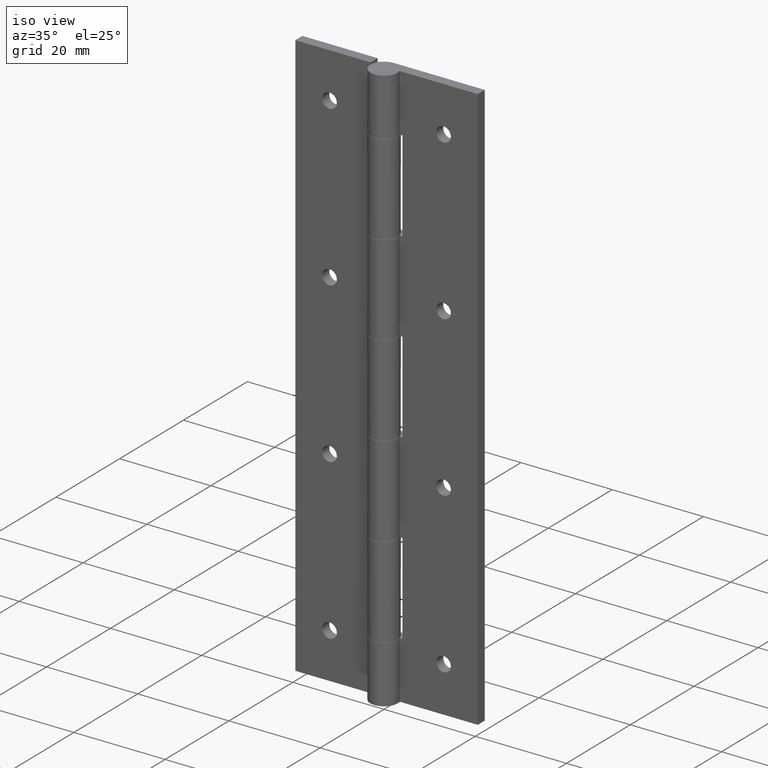
[diagram: clean part render]
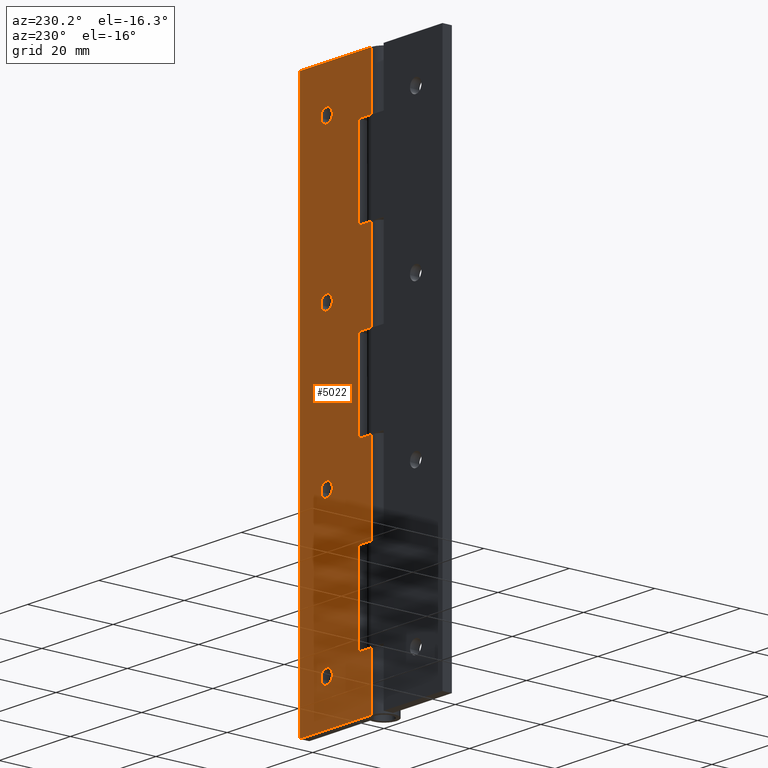
[diagram: tour spotlight — one face highlighted and labeled with its STEP entity id]
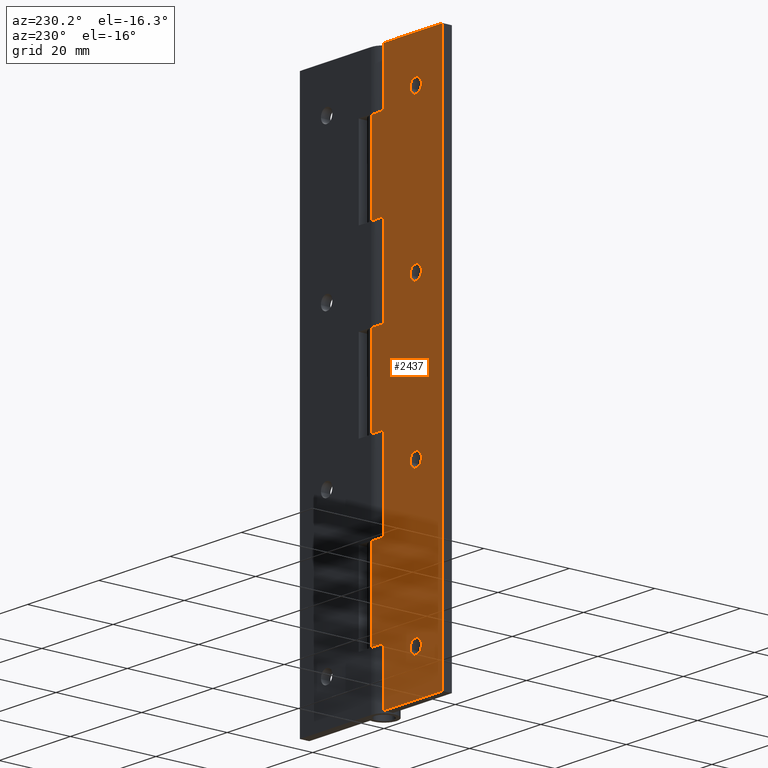
[diagram: tour spotlight — one face highlighted and labeled with its STEP entity id]
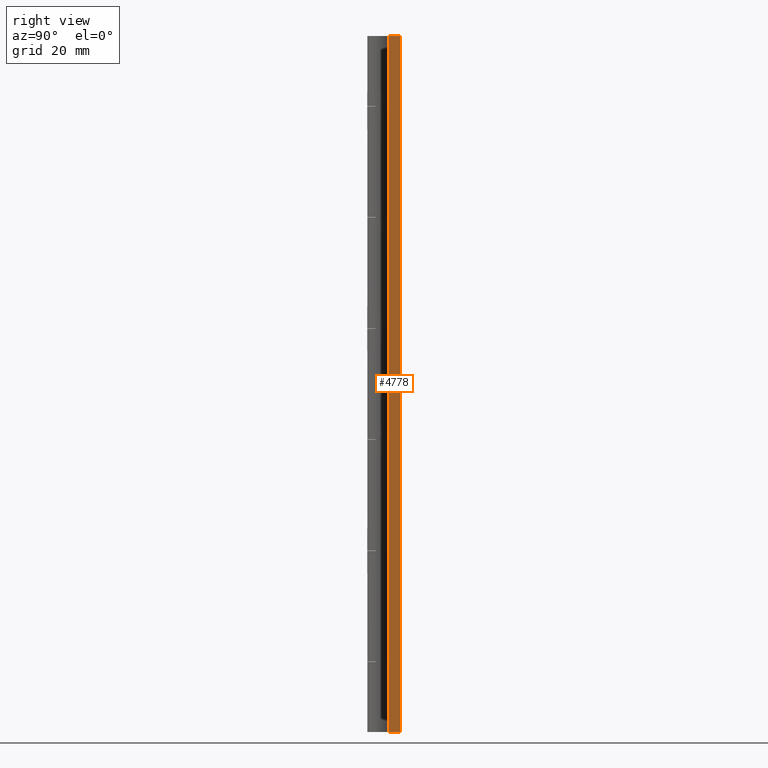
[diagram: tour spotlight — one face highlighted and labeled with its STEP entity id]
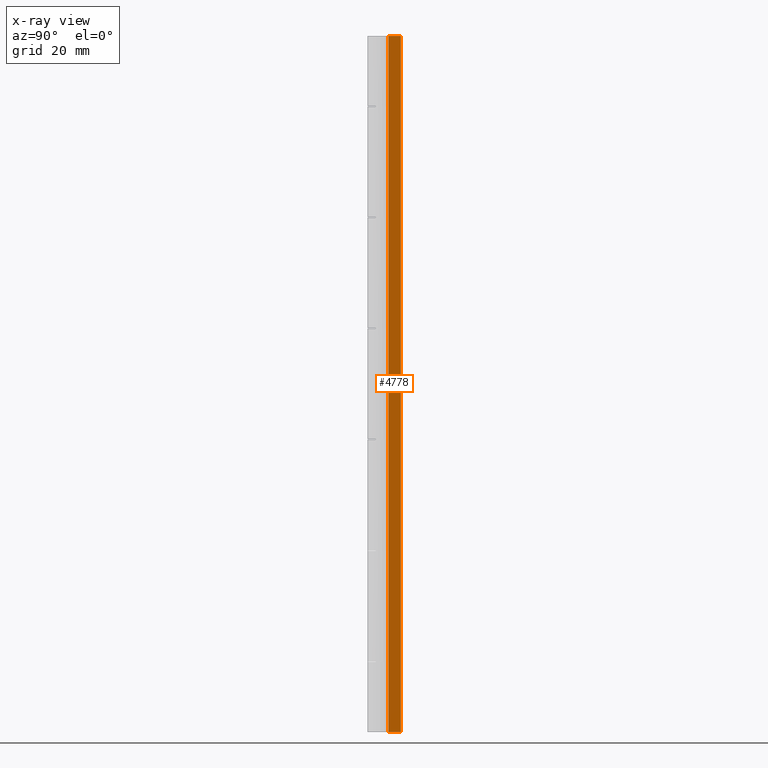
[diagram: x-ray of the same camera — body ghosted, this tour face saturated]
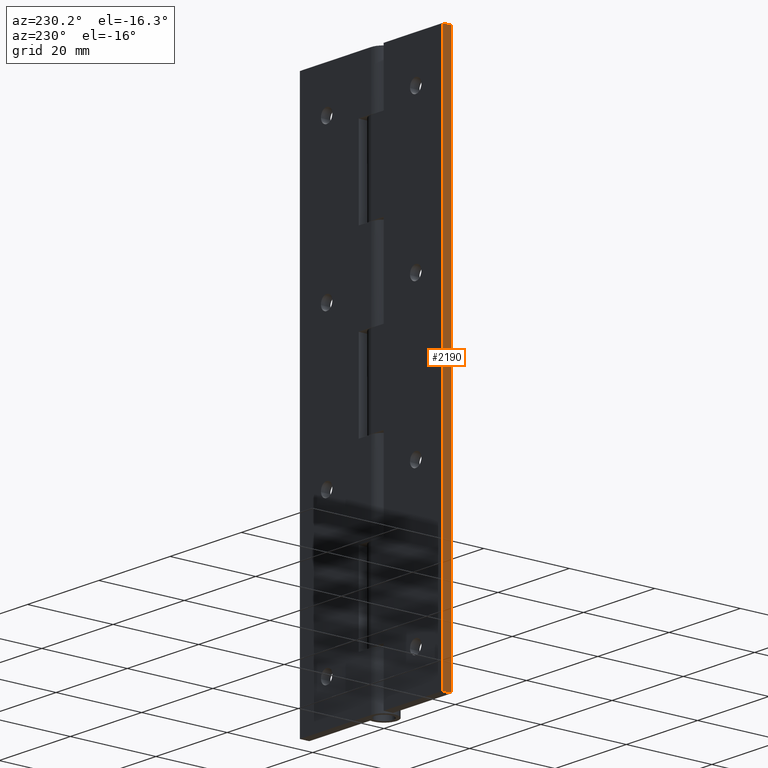
[diagram: tour spotlight — one face highlighted and labeled with its STEP entity id]
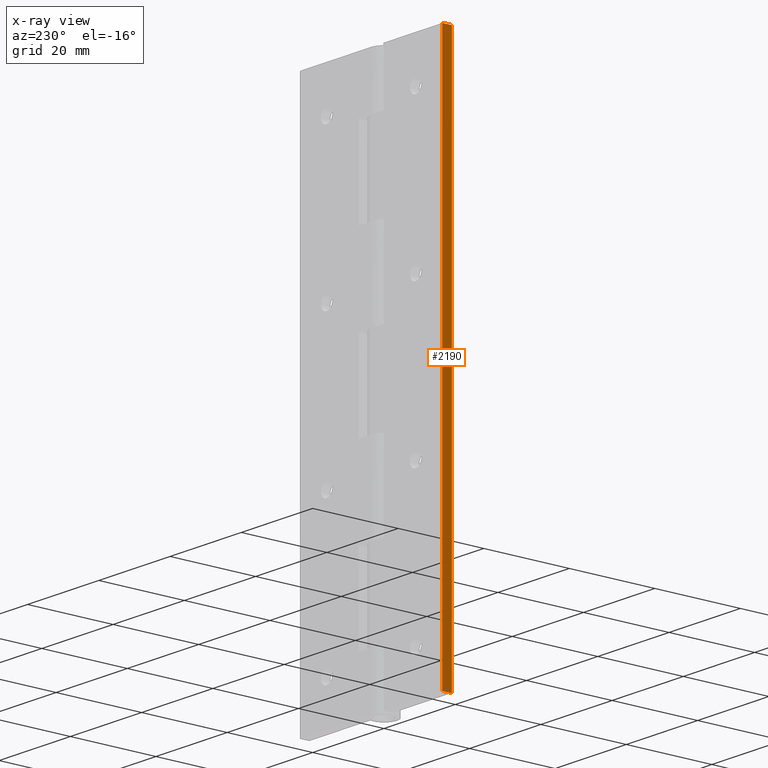
[diagram: x-ray of the same camera — body ghosted, this tour face saturated]
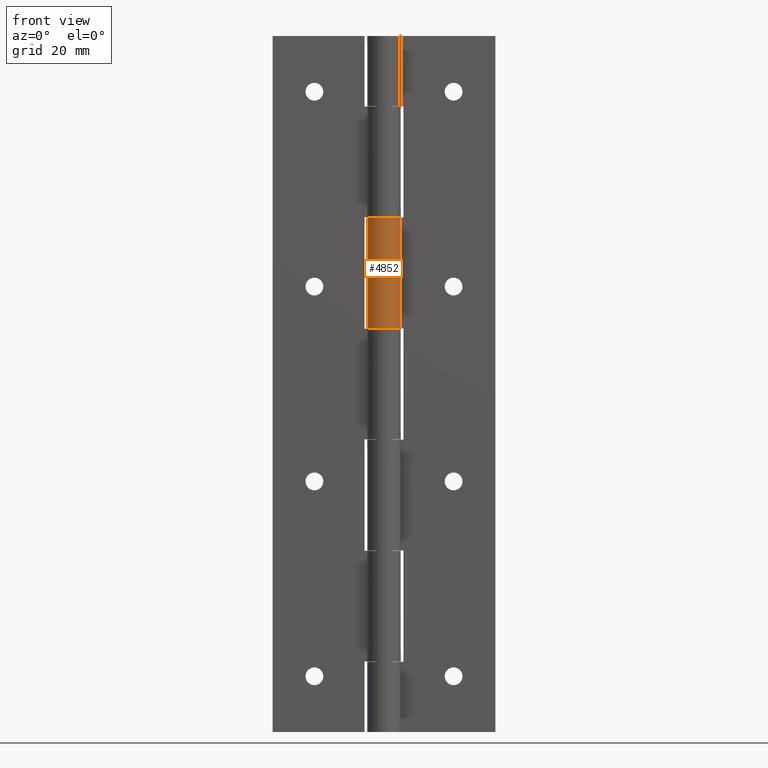
[diagram: tour spotlight — one face highlighted and labeled with its STEP entity id]
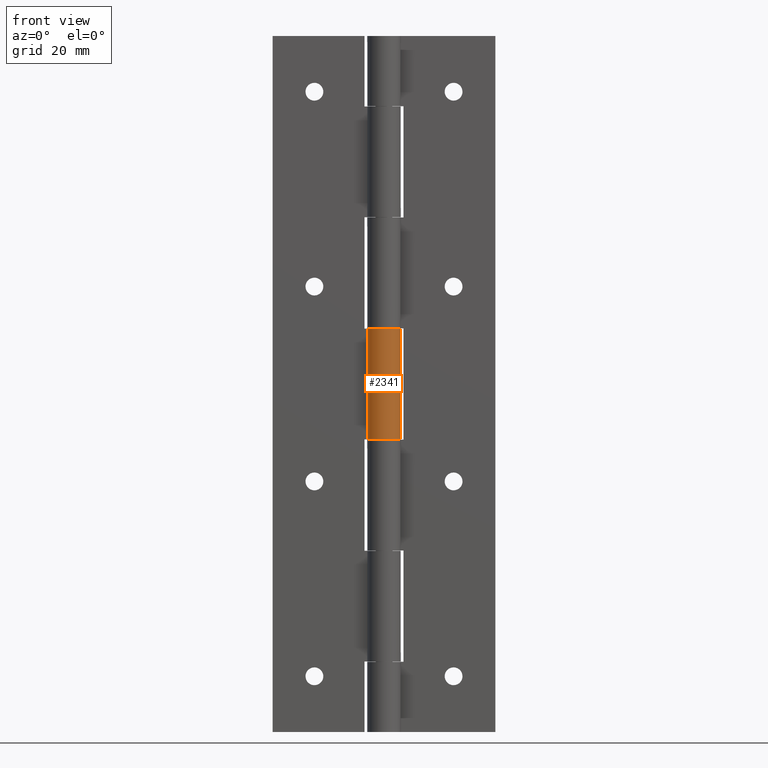
[diagram: tour spotlight — one face highlighted and labeled with its STEP entity id]
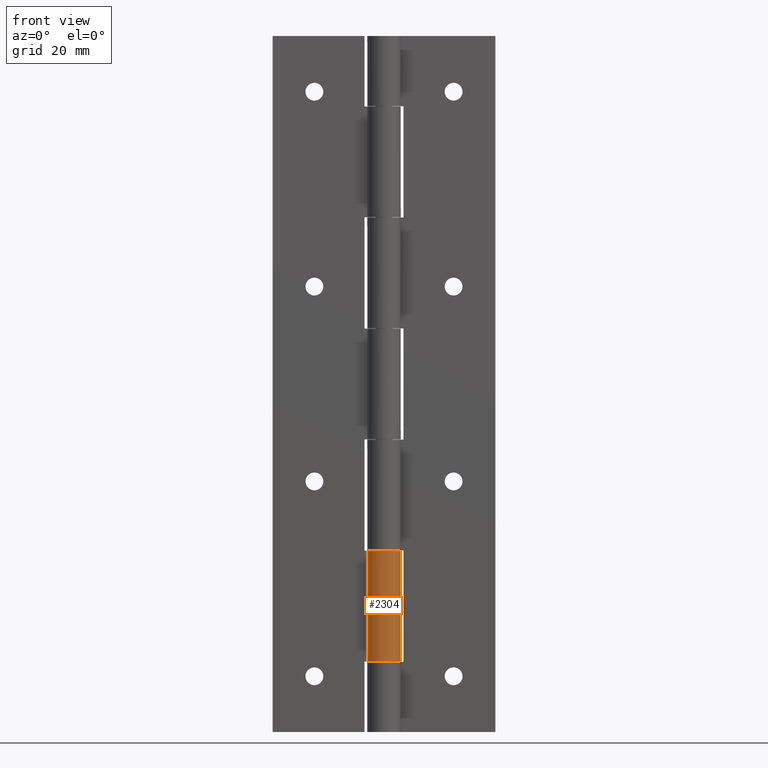
[diagram: tour spotlight — one face highlighted and labeled with its STEP entity id]
A machine part: a face-by-face anatomy tour. The part has 76 B-rep faces; the first image is the clean iso view, then the 7 largest visible faces are spotlighted one at a time (largest first), each with its STEP entity span.

Face 1 — auxiliary view, entity #5022. In plain terms, the highlighted face is a freeform B-spline surface patch.
Definition (entity closure, byte-faithful):
#3558=CARTESIAN_POINT('',(10.904932266108959,3.0,115.125534554206000));
#3559=VERTEX_POINT('',#3558);
#3565=CARTESIAN_POINT('',(12.500000000000000,3.0,116.599999999999990));
#3566=VERTEX_POINT('',#3565);
#3567=CARTESIAN_POINT('',(12.500000000000000,3.0,116.599999999999990));
#3568=CARTESIAN_POINT('',(11.020975215284272,2.999999999999999,116.600000000000020));
#3569=CARTESIAN_POINT('',(10.904932266108959,3.000000000000001,115.125534554206060));
#3577=(BOUNDED_CURVE()B_SPLINE_CURVE(2,(#3567,#3568,#3569),.UNSPECIFIED.,.F.,.U.)B_SPLINE_CURVE_WITH_KNOTS((3,3),(0.0,0.236331300408907),.UNSPECIFIED.)CURVE()GEOMETRIC_REPRESENTATION_ITEM()RATIONAL_B_SPLINE_CURVE((1.0,0.723120658867465,0.969723355704637))REPRESENTATION_ITEM(''));
#3578=EDGE_CURVE('',#3566,#3559,#3577,.T.);
#3580=CARTESIAN_POINT('',(14.095067733891041,3.0,114.874465445794000));
#3581=VERTEX_POINT('',#3580);
#3582=CARTESIAN_POINT('',(14.095067733891039,3.000000000000000,114.874465445794020));
#3583=CARTESIAN_POINT('',(14.099999999999998,3.0,114.937135827741430));
#3584=CARTESIAN_POINT('',(14.100000000000000,3.0,115.0));
#3585=CARTESIAN_POINT('',(14.100000000000001,3.0,116.600000000000010));
#3586=CARTESIAN_POINT('',(12.500000000000000,3.0,116.599999999999990));
#3594=(BOUNDED_CURVE()B_SPLINE_CURVE(2,(#3582,#3583,#3584,#3585,#3586),.UNSPECIFIED.,.F.,.U.)B_SPLINE_CURVE_WITH_KNOTS((3,2,3),(0.736331300408906,0.750000000000000,1.0),.UNSPECIFIED.)CURVE()GEOMETRIC_REPRESENTATION_ITEM()RATIONAL_B_SPLINE_CURVE((0.969723355704634,0.983986122319081,1.0,0.707106781186548,1.0))REPRESENTATION_ITEM(''));
#3595=EDGE_CURVE('',#3581,#3566,#3594,.T.);
#3671=CARTESIAN_POINT('',(12.500000000000000,3.0,113.400000000000010));
#3672=VERTEX_POINT('',#3671);
#3673=CARTESIAN_POINT('',(12.500000000000000,3.0,113.400000000000010));
#3674=CARTESIAN_POINT('',(13.979024784715714,3.000000000000001,113.400000000000010));
#3675=CARTESIAN_POINT('',(14.095067733891041,2.999999999999999,114.874465445794020));
#3683=(BOUNDED_CURVE()B_SPLINE_CURVE(2,(#3673,#3674,#3675),.UNSPECIFIED.,.F.,.U.)B_SPLINE_CURVE_WITH_KNOTS((3,3),(0.500000000000000,0.736331300408905),.UNSPECIFIED.)CURVE()GEOMETRIC_REPRESENTATION_ITEM()RATIONAL_B_SPLINE_CURVE((1.0,0.723120658867467,0.969723355704633))REPRESENTATION_ITEM(''));
#3684=EDGE_CURVE('',#3672,#3581,#3683,.T.);
#3686=CARTESIAN_POINT('',(10.904932266108959,3.000000000000001,115.125534554206060));
#3687=CARTESIAN_POINT('',(10.900000000000002,3.000000000000001,115.062864172258570));
#3688=CARTESIAN_POINT('',(10.900000000000000,3.0,115.0));
#3689=CARTESIAN_POINT('',(10.900000000000000,3.0,113.400000000000010));
#3690=CARTESIAN_POINT('',(12.500000000000000,3.0,113.400000000000010));
#3698=(BOUNDED_CURVE()B_SPLINE_CURVE(2,(#3686,#3687,#3688,#3689,#3690),.UNSPECIFIED.,.F.,.U.)B_SPLINE_CURVE_WITH_KNOTS((3,2,3),(0.236331300408907,0.250000000000000,0.500000000000000),.UNSPECIFIED.)CURVE()GEOMETRIC_REPRESENTATION_ITEM()RATIONAL_B_SPLINE_CURVE((0.969723355704637,0.983986122319082,1.0,0.707106781186548,1.0))REPRESENTATION_ITEM(''));
#3699=EDGE_CURVE('',#3559,#3672,#3698,.T.);
#3740=CARTESIAN_POINT('',(10.904932266108959,3.0,80.125534554206041));
#3741=VERTEX_POINT('',#3740);
#3747=CARTESIAN_POINT('',(12.500000000000000,3.0,81.600000000000009));
#3748=VERTEX_POINT('',#3747);
#3749=CARTESIAN_POINT('',(12.500000000000000,3.0,81.600000000000009));
#3750=CARTESIAN_POINT('',(11.020975215284272,2.999999999999999,81.600000000000009));
#3751=CARTESIAN_POINT('',(10.904932266108959,3.000000000000001,80.125534554206041));
#3759=(BOUNDED_CURVE()B_SPLINE_CURVE(2,(#3749,#3750,#3751),.UNSPECIFIED.,.F.,.U.)B_SPLINE_CURVE_WITH_KNOTS((3,3),(0.0,0.236331300408907),.UNSPECIFIED.)CURVE()GEOMETRIC_REPRESENTATION_ITEM()RATIONAL_B_SPLINE_CURVE((1.0,0.723120658867465,0.969723355704637))REPRESENTATION_ITEM(''));
#3760=EDGE_CURVE('',#3748,#3741,#3759,.T.);
#3762=CARTESIAN_POINT('',(14.095067733891041,3.0,79.874465445793959));
#3763=VERTEX_POINT('',#3762);
#3764=CARTESIAN_POINT('',(14.095067733891044,2.999999999999999,79.874465445793959));
#3765=CARTESIAN_POINT('',(14.100000000000003,3.000000000000000,79.937135827741415));
#3766=CARTESIAN_POINT('',(14.100000000000000,3.0,80.0));
#3767=CARTESIAN_POINT('',(14.100000000000001,3.0,81.600000000000009));
#3768=CARTESIAN_POINT('',(12.500000000000000,3.0,81.600000000000009));
#3776=(BOUNDED_CURVE()B_SPLINE_CURVE(2,(#3764,#3765,#3766,#3767,#3768),.UNSPECIFIED.,.F.,.U.)B_SPLINE_CURVE_WITH_KNOTS((3,2,3),(0.736331300408907,0.750000000000000,1.0),.UNSPECIFIED.)CURVE()GEOMETRIC_REPRESENTATION_ITEM()RATIONAL_B_SPLINE_CURVE((0.969723355704637,0.983986122319083,1.0,0.707106781186548,1.0))REPRESENTATION_ITEM(''));
#3777=EDGE_CURVE('',#3763,#3748,#3776,.T.);
#3853=CARTESIAN_POINT('',(12.500000000000000,3.0,78.399999999999991));
#3854=VERTEX_POINT('',#3853);
#3855=CARTESIAN_POINT('',(12.500000000000000,3.0,78.399999999999991));
#3856=CARTESIAN_POINT('',(13.979024784715737,3.000000000000000,78.399999999999991));
#3857=CARTESIAN_POINT('',(14.095067733891039,3.000000000000000,79.874465445793959));
#3865=(BOUNDED_CURVE()B_SPLINE_CURVE(2,(#3855,#3856,#3857),.UNSPECIFIED.,.F.,.U.)B_SPLINE_CURVE_WITH_KNOTS((3,3),(0.500000000000000,0.736331300408907),.UNSPECIFIED.)CURVE()GEOMETRIC_REPRESENTATION_ITEM()RATIONAL_B_SPLINE_CURVE((1.0,0.723120658867465,0.969723355704638))REPRESENTATION_ITEM(''));
#3866=EDGE_CURVE('',#3854,#3763,#3865,.T.);
#3868=CARTESIAN_POINT('',(10.904932266108959,3.000000000000001,80.125534554206041));
#3869=CARTESIAN_POINT('',(10.900000000000002,3.000000000000001,80.062864172258585));
#3870=CARTESIAN_POINT('',(10.900000000000000,3.0,80.0));
#3871=CARTESIAN_POINT('',(10.900000000000000,3.0,78.399999999999991));
#3872=CARTESIAN_POINT('',(12.500000000000000,3.0,78.399999999999991));
#3880=(BOUNDED_CURVE()B_SPLINE_CURVE(2,(#3868,#3869,#3870,#3871,#3872),.UNSPECIFIED.,.F.,.U.)B_SPLINE_CURVE_WITH_KNOTS((3,2,3),(0.236331300408907,0.250000000000000,0.500000000000000),.UNSPECIFIED.)CURVE()GEOMETRIC_REPRESENTATION_ITEM()RATIONAL_B_SPLINE_CURVE((0.969723355704637,0.983986122319082,1.0,0.707106781186548,1.0))REPRESENTATION_ITEM(''));
#3881=EDGE_CURVE('',#3741,#3854,#3880,.T.);
#3922=CARTESIAN_POINT('',(10.904932266108959,3.0,45.125534554206041));
#3923=VERTEX_POINT('',#3922);
#3929=CARTESIAN_POINT('',(12.500000000000000,3.0,46.599999999999987));
#3930=VERTEX_POINT('',#3929);
#3931=CARTESIAN_POINT('',(12.500000000000000,3.0,46.599999999999987));
#3932=CARTESIAN_POINT('',(11.020975215284277,3.000000000000000,46.599999999999994));
#3933=CARTESIAN_POINT('',(10.904932266108966,3.0,45.125534554206041));
#3941=(BOUNDED_CURVE()B_SPLINE_CURVE(2,(#3931,#3932,#3933),.UNSPECIFIED.,.F.,.U.)B_SPLINE_CURVE_WITH_KNOTS((3,3),(0.0,0.236331300408906),.UNSPECIFIED.)CURVE()GEOMETRIC_REPRESENTATION_ITEM()RATIONAL_B_SPLINE_CURVE((1.0,0.723120658867466,0.969723355704635))REPRESENTATION_ITEM(''));
#3942=EDGE_CURVE('',#3930,#3923,#3941,.T.);
#3944=CARTESIAN_POINT('',(14.095067733891041,3.0,44.874465445793959));
#3945=VERTEX_POINT('',#3944);
#3946=CARTESIAN_POINT('',(14.095067733891039,3.000000000000000,44.874465445793966));
#3947=CARTESIAN_POINT('',(14.100000000000003,3.0,44.937135827741407));
#3948=CARTESIAN_POINT('',(14.100000000000000,3.0,45.0));
#3949=CARTESIAN_POINT('',(14.100000000000001,3.0,46.599999999999987));
#3950=CARTESIAN_POINT('',(12.500000000000000,3.0,46.599999999999987));
#3958=(BOUNDED_CURVE()B_SPLINE_CURVE(2,(#3946,#3947,#3948,#3949,#3950),.UNSPECIFIED.,.F.,.U.)B_SPLINE_CURVE_WITH_KNOTS((3,2,3),(0.736331300408906,0.750000000000000,1.0),.UNSPECIFIED.)CURVE()GEOMETRIC_REPRESENTATION_ITEM()RATIONAL_B_SPLINE_CURVE((0.969723355704635,0.983986122319081,1.0,0.707106781186548,1.0))REPRESENTATION_ITEM(''));
#3959=EDGE_CURVE('',#3945,#3930,#3958,.T.);
#4035=CARTESIAN_POINT('',(12.500000000000000,3.0,43.399999999999999));
#4036=VERTEX_POINT('',#4035);
#4037=CARTESIAN_POINT('',(12.500000000000000,3.0,43.399999999999999));
#4038=CARTESIAN_POINT('',(13.979024784715714,3.000000000000001,43.399999999999999));
#4039=CARTESIAN_POINT('',(14.095067733891041,3.000000000000000,44.874465445793966));
#4047=(BOUNDED_CURVE()B_SPLINE_CURVE(2,(#4037,#4038,#4039),.UNSPECIFIED.,.F.,.U.)B_SPLINE_CURVE_WITH_KNOTS((3,3),(0.500000000000000,0.736331300408905),.UNSPECIFIED.)CURVE()GEOMETRIC_REPRESENTATION_ITEM()RATIONAL_B_SPLINE_CURVE((1.0,0.723120658867467,0.969723355704633))REPRESENTATION_ITEM(''));
#4048=EDGE_CURVE('',#4036,#3945,#4047,.T.);
#4050=CARTESIAN_POINT('',(10.904932266108968,3.000000000000000,45.125534554206041));
#4051=CARTESIAN_POINT('',(10.900000000000000,3.000000000000000,45.062864172258600));
#4052=CARTESIAN_POINT('',(10.900000000000000,3.0,45.0));
#4053=CARTESIAN_POINT('',(10.900000000000000,3.0,43.399999999999991));
#4054=CARTESIAN_POINT('',(12.500000000000000,3.0,43.399999999999999));
#4062=(BOUNDED_CURVE()B_SPLINE_CURVE(2,(#4050,#4051,#4052,#4053,#4054),.UNSPECIFIED.,.F.,.U.)B_SPLINE_CURVE_WITH_KNOTS((3,2,3),(0.236331300408906,0.250000000000000,0.500000000000000),.UNSPECIFIED.)CURVE()GEOMETRIC_REPRESENTATION_ITEM()RATIONAL_B_SPLINE_CURVE((0.969723355704635,0.983986122319082,1.0,0.707106781186548,1.0))REPRESENTATION_ITEM(''));
#4063=EDGE_CURVE('',#3923,#4036,#4062,.T.);
#4104=CARTESIAN_POINT('',(10.904932266108959,3.0,10.125534554206039));
#4105=VERTEX_POINT('',#4104);
#4111=CARTESIAN_POINT('',(12.500000000000000,3.0,11.600000000000000));
#4112=VERTEX_POINT('',#4111);
#4113=CARTESIAN_POINT('',(12.500000000000000,3.0,11.600000000000000));
#4114=CARTESIAN_POINT('',(11.020975215284277,3.000000000000001,11.600000000000001));
#4115=CARTESIAN_POINT('',(10.904932266108966,3.000000000000000,10.125534554206039));
#4123=(BOUNDED_CURVE()B_SPLINE_CURVE(2,(#4113,#4114,#4115),.UNSPECIFIED.,.F.,.U.)B_SPLINE_CURVE_WITH_KNOTS((3,3),(0.0,0.236331300408906),.UNSPECIFIED.)CURVE()GEOMETRIC_REPRESENTATION_ITEM()RATIONAL_B_SPLINE_CURVE((1.0,0.723120658867466,0.969723355704635))REPRESENTATION_ITEM(''));
#4124=EDGE_CURVE('',#4112,#4105,#4123,.T.);
#4126=CARTESIAN_POINT('',(14.095067733891041,3.0,9.874465445793963));
#4127=VERTEX_POINT('',#4126);
#4128=CARTESIAN_POINT('',(14.095067733891037,3.0,9.874465445793963));
#4129=CARTESIAN_POINT('',(14.100000000000005,3.0,9.937135827741409));
#4130=CARTESIAN_POINT('',(14.100000000000000,3.0,10.0));
#4131=CARTESIAN_POINT('',(14.100000000000001,3.0,11.600000000000001));
#4132=CARTESIAN_POINT('',(12.500000000000000,3.0,11.600000000000000));
#4140=(BOUNDED_CURVE()B_SPLINE_CURVE(2,(#4128,#4129,#4130,#4131,#4132),.UNSPECIFIED.,.F.,.U.)B_SPLINE_CURVE_WITH_KNOTS((3,2,3),(0.736331300408906,0.750000000000000,1.0),.UNSPECIFIED.)CURVE()GEOMETRIC_REPRESENTATION_ITEM()RATIONAL_B_SPLINE_CURVE((0.969723355704636,0.983986122319082,1.0,0.707106781186548,1.0))REPRESENTATION_ITEM(''));
#4141=EDGE_CURVE('',#4127,#4112,#4140,.T.);
#4217=CARTESIAN_POINT('',(12.500000000000000,3.0,8.400000000000000));
#4218=VERTEX_POINT('',#4217);
#4219=CARTESIAN_POINT('',(12.500000000000000,3.0,8.400000000000000));
#4220=CARTESIAN_POINT('',(13.979024784715737,3.000000000000000,8.400000000000000));
#4221=CARTESIAN_POINT('',(14.095067733891039,3.000000000000000,9.874465445793963));
#4229=(BOUNDED_CURVE()B_SPLINE_CURVE(2,(#4219,#4220,#4221),.UNSPECIFIED.,.F.,.U.)B_SPLINE_CURVE_WITH_KNOTS((3,3),(0.500000000000000,0.736331300408907),.UNSPECIFIED.)CURVE()GEOMETRIC_REPRESENTATION_ITEM()RATIONAL_B_SPLINE_CURVE((1.0,0.723120658867465,0.969723355704638))REPRESENTATION_ITEM(''));
#4230=EDGE_CURVE('',#4218,#4127,#4229,.T.);
#4232=CARTESIAN_POINT('',(10.904932266108966,3.000000000000000,10.125534554206039));
#4233=CARTESIAN_POINT('',(10.899999999999999,3.000000000000000,10.062864172258593));
#4234=CARTESIAN_POINT('',(10.900000000000000,3.0,10.0));
#4235=CARTESIAN_POINT('',(10.900000000000000,3.0,8.400000000000000));
#4236=CARTESIAN_POINT('',(12.500000000000000,3.0,8.400000000000000));
#4244=(BOUNDED_CURVE()B_SPLINE_CURVE(2,(#4232,#4233,#4234,#4235,#4236),.UNSPECIFIED.,.F.,.U.)B_SPLINE_CURVE_WITH_KNOTS((3,2,3),(0.236331300408906,0.250000000000000,0.500000000000000),.UNSPECIFIED.)CURVE()GEOMETRIC_REPRESENTATION_ITEM()RATIONAL_B_SPLINE_CURVE((0.969723355704635,0.983986122319082,1.0,0.707106781186548,1.0))REPRESENTATION_ITEM(''));
#4245=EDGE_CURVE('',#4105,#4218,#4244,.T.);
#4265=CARTESIAN_POINT('',(0.0,3.0,32.599999999999987));
#4266=VERTEX_POINT('',#4265);
#4286=CARTESIAN_POINT('',(3.500000000000000,3.0,32.599999999999987));
#4287=VERTEX_POINT('',#4286);
#4288=CARTESIAN_POINT('',(3.500000000000000,3.0,32.599999999999987));
#4289=CARTESIAN_POINT('',(0.0,3.0,32.599999999999987));
#4290=QUASI_UNIFORM_CURVE('',1,(#4288,#4289),.UNSPECIFIED.,.F.,.U.);
#4291=EDGE_CURVE('',#4287,#4266,#4290,.T.);
#4313=CARTESIAN_POINT('',(3.500000000000000,3.0,12.600000000000000));
#4314=VERTEX_POINT('',#4313);
#4315=CARTESIAN_POINT('',(3.500000000000000,3.0,12.600000000000000));
#4316=CARTESIAN_POINT('',(3.500000000000000,3.0,32.599999999999987));
#4317=QUASI_UNIFORM_CURVE('',1,(#4315,#4316),.UNSPECIFIED.,.F.,.U.);
#4318=EDGE_CURVE('',#4314,#4287,#4317,.T.);
#4341=CARTESIAN_POINT('',(0.0,3.0,12.600000000000000));
#4342=VERTEX_POINT('',#4341);
#4343=CARTESIAN_POINT('',(0.0,3.0,12.600000000000000));
#4344=CARTESIAN_POINT('',(3.500000000000000,3.0,12.600000000000000));
#4345=QUASI_UNIFORM_CURVE('',1,(#4343,#4344),.UNSPECIFIED.,.F.,.U.);
#4346=EDGE_CURVE('',#4342,#4314,#4345,.T.);
#4397=CARTESIAN_POINT('',(0.0,3.0,72.500000000000000));
#4398=VERTEX_POINT('',#4397);
#4418=CARTESIAN_POINT('',(3.500000000000000,3.0,72.500000000000000));
#4419=VERTEX_POINT('',#4418);
#4420=CARTESIAN_POINT('',(3.500000000000000,3.0,72.500000000000000));
#4421=CARTESIAN_POINT('',(0.0,3.0,72.500000000000000));
#4422=QUASI_UNIFORM_CURVE('',1,(#4420,#4421),.UNSPECIFIED.,.F.,.U.);
#4423=EDGE_CURVE('',#4419,#4398,#4422,.T.);
#4445=CARTESIAN_POINT('',(3.500000000000000,3.0,52.500000000000000));
#4446=VERTEX_POINT('',#4445);
#4447=CARTESIAN_POINT('',(3.500000000000000,3.0,52.500000000000000));
#4448=CARTESIAN_POINT('',(3.500000000000000,3.0,72.500000000000000));
#4449=QUASI_UNIFORM_CURVE('',1,(#4447,#4448),.UNSPECIFIED.,.F.,.U.);
#4450=EDGE_CURVE('',#4446,#4419,#4449,.T.);
#4473=CARTESIAN_POINT('',(0.0,3.0,52.500000000000000));
#4474=VERTEX_POINT('',#4473);
#4475=CARTESIAN_POINT('',(0.0,3.0,52.500000000000000));
#4476=CARTESIAN_POINT('',(3.500000000000000,3.0,52.500000000000000));
#4477=QUASI_UNIFORM_CURVE('',1,(#4475,#4476),.UNSPECIFIED.,.F.,.U.);
#4478=EDGE_CURVE('',#4474,#4446,#4477,.T.);
#4529=CARTESIAN_POINT('',(0.0,3.0,112.400000000000010));
#4530=VERTEX_POINT('',#4529);
#4550=CARTESIAN_POINT('',(3.500000000000000,3.0,112.400000000000010));
#4551=VERTEX_POINT('',#4550);
#4552=CARTESIAN_POINT('',(3.500000000000000,3.0,112.400000000000010));
#4553=CARTESIAN_POINT('',(0.0,3.0,112.400000000000010));
#4554=QUASI_UNIFORM_CURVE('',1,(#4552,#4553),.UNSPECIFIED.,.F.,.U.);
#4555=EDGE_CURVE('',#4551,#4530,#4554,.T.);
#4577=CARTESIAN_POINT('',(3.500000000000000,3.0,92.399999999999991));
#4578=VERTEX_POINT('',#4577);
#4579=CARTESIAN_POINT('',(3.500000000000000,3.0,92.399999999999991));
#4580=CARTESIAN_POINT('',(3.500000000000000,3.0,112.400000000000010));
#4581=QUASI_UNIFORM_CURVE('',1,(#4579,#4580),.UNSPECIFIED.,.F.,.U.);
#4582=EDGE_CURVE('',#4578,#4551,#4581,.T.);
#4605=CARTESIAN_POINT('',(0.0,3.0,92.399999999999991));
#4606=VERTEX_POINT('',#4605);
#4607=CARTESIAN_POINT('',(0.0,3.0,92.399999999999991));
#4608=CARTESIAN_POINT('',(3.500000000000000,3.0,92.399999999999991));
#4609=QUASI_UNIFORM_CURVE('',1,(#4607,#4608),.UNSPECIFIED.,.F.,.U.);
#4610=EDGE_CURVE('',#4606,#4578,#4609,.T.);
#4652=CARTESIAN_POINT('',(-5.510729E-016,3.0,0.0));
#4653=VERTEX_POINT('',#4652);
#4654=CARTESIAN_POINT('',(20.0,3.0,0.0));
#4655=VERTEX_POINT('',#4654);
#4656=CARTESIAN_POINT('',(-5.510729E-016,3.0,0.0));
#4657=CARTESIAN_POINT('',(20.0,3.0,0.0));
#4658=QUASI_UNIFORM_CURVE('',1,(#4656,#4657),.UNSPECIFIED.,.F.,.U.);
#4659=EDGE_CURVE('',#4653,#4655,#4658,.T.);
#4708=CARTESIAN_POINT('',(-5.510729E-016,3.0,125.0));
#4709=VERTEX_POINT('',#4708);
#4710=CARTESIAN_POINT('',(20.0,3.0,125.0));
#4711=VERTEX_POINT('',#4710);
#4712=CARTESIAN_POINT('',(-5.510729E-016,3.0,125.0));
#4713=CARTESIAN_POINT('',(20.0,3.0,125.0));
#4714=QUASI_UNIFORM_CURVE('',1,(#4712,#4713),.UNSPECIFIED.,.F.,.U.);
#4715=EDGE_CURVE('',#4709,#4711,#4714,.T.);
#4765=CARTESIAN_POINT('',(20.0,3.0,125.0));
#4766=CARTESIAN_POINT('',(20.0,3.0,0.0));
#4767=QUASI_UNIFORM_CURVE('',1,(#4765,#4766),.UNSPECIFIED.,.F.,.U.);
#4768=EDGE_CURVE('',#4711,#4655,#4767,.T.);
#4808=CARTESIAN_POINT('',(-5.510729E-016,3.0,125.0));
#4809=CARTESIAN_POINT('',(0.0,3.0,112.400000000000010));
#4810=QUASI_UNIFORM_CURVE('',1,(#4808,#4809),.UNSPECIFIED.,.F.,.U.);
#4811=EDGE_CURVE('',#4709,#4530,#4810,.T.);
#4845=CARTESIAN_POINT('',(0.0,3.0,92.399999999999991));
#4846=CARTESIAN_POINT('',(0.0,3.0,72.500000000000000));
#4847=QUASI_UNIFORM_CURVE('',1,(#4845,#4846),.UNSPECIFIED.,.F.,.U.);
#4848=EDGE_CURVE('',#4606,#4398,#4847,.T.);
#4882=CARTESIAN_POINT('',(0.0,3.0,52.500000000000000));
#4883=CARTESIAN_POINT('',(0.0,3.0,32.599999999999987));
#4884=QUASI_UNIFORM_CURVE('',1,(#4882,#4883),.UNSPECIFIED.,.F.,.U.);
#4885=EDGE_CURVE('',#4474,#4266,#4884,.T.);
#4913=CARTESIAN_POINT('',(0.0,3.0,12.600000000000000));
#4914=CARTESIAN_POINT('',(-5.510729E-016,3.0,0.0));
#4915=QUASI_UNIFORM_CURVE('',1,(#4913,#4914),.UNSPECIFIED.,.F.,.U.);
#4916=EDGE_CURVE('',#4342,#4653,#4915,.T.);
#4975=CARTESIAN_POINT('',(-0.998999961236120,3.0,-6.243749757725747));
#4976=CARTESIAN_POINT('',(-0.998999961236120,3.0,131.243753110487010));
#4977=CARTESIAN_POINT('',(20.999000497677919,3.0,-6.243749757725747));
#4978=CARTESIAN_POINT('',(20.999000497677919,3.0,131.243753110487010));
#4979=B_SPLINE_SURFACE_WITH_KNOTS('',1,1,((#4975,#4977),(#4976,#4978)),.UNSPECIFIED.,.F.,.F.,.U.,(2,2),(2,2),(0.0,137.487502868212800),(0.0,21.998000458914039),.UNSPECIFIED.);
#4980=ORIENTED_EDGE('',*,*,#4916,.F.);
#4981=ORIENTED_EDGE('',*,*,#4346,.T.);
#4982=ORIENTED_EDGE('',*,*,#4318,.T.);
#4983=ORIENTED_EDGE('',*,*,#4291,.T.);
#4984=ORIENTED_EDGE('',*,*,#4885,.F.);
#4985=ORIENTED_EDGE('',*,*,#4478,.T.);
#4986=ORIENTED_EDGE('',*,*,#4450,.T.);
#4987=ORIENTED_EDGE('',*,*,#4423,.T.);
#4988=ORIENTED_EDGE('',*,*,#4848,.F.);
#4989=ORIENTED_EDGE('',*,*,#4610,.T.);
#4990=ORIENTED_EDGE('',*,*,#4582,.T.);
#4991=ORIENTED_EDGE('',*,*,#4555,.T.);
#4992=ORIENTED_EDGE('',*,*,#4811,.F.);
#4993=ORIENTED_EDGE('',*,*,#4715,.T.);
#4994=ORIENTED_EDGE('',*,*,#4768,.T.);
#4995=ORIENTED_EDGE('',*,*,#4659,.F.);
#4996=EDGE_LOOP('',(#4980,#4981,#4982,#4983,#4984,#4985,#4986,#4987,#4988,#4989,#4990,#4991,#4992,#4993,#4994,#4995));
#4997=FACE_OUTER_BOUND('',#4996,.T.);
#4998=ORIENTED_EDGE('',*,*,#4230,.T.);
#4999=ORIENTED_EDGE('',*,*,#4141,.T.);
#5000=ORIENTED_EDGE('',*,*,#4124,.T.);
#5001=ORIENTED_EDGE('',*,*,#4245,.T.);
#5002=EDGE_LOOP('',(#4998,#4999,#5000,#5001));
#5003=FACE_BOUND('',#5002,.T.);
#5004=ORIENTED_EDGE('',*,*,#4048,.T.);
#5005=ORIENTED_EDGE('',*,*,#3959,.T.);
#5006=ORIENTED_EDGE('',*,*,#3942,.T.);
#5007=ORIENTED_EDGE('',*,*,#4063,.T.);
#5008=EDGE_LOOP('',(#5004,#5005,#5006,#5007));
#5009=FACE_BOUND('',#5008,.T.);
#5010=ORIENTED_EDGE('',*,*,#3866,.T.);
#5011=ORIENTED_EDGE('',*,*,#3777,.T.);
#5012=ORIENTED_EDGE('',*,*,#3760,.T.);
#5013=ORIENTED_EDGE('',*,*,#3881,.T.);
#5014=EDGE_LOOP('',(#5010,#5011,#5012,#5013));
#5015=FACE_BOUND('',#5014,.T.);
#5016=ORIENTED_EDGE('',*,*,#3684,.T.);
#5017=ORIENTED_EDGE('',*,*,#3595,.T.);
#5018=ORIENTED_EDGE('',*,*,#3578,.T.);
#5019=ORIENTED_EDGE('',*,*,#3699,.T.);
#5020=EDGE_LOOP('',(#5016,#5017,#5018,#5019));
#5021=FACE_BOUND('',#5020,.T.);
#5022=ADVANCED_FACE('',(#4997,#5003,#5009,#5015,#5021),#4979,.T.);

Face 2 — auxiliary view, entity #2437. In plain terms, the highlighted face is a freeform B-spline surface patch.
Definition (entity closure, byte-faithful):
#1030=CARTESIAN_POINT('',(-14.095067733891041,3.0,115.125534554206000));
#1031=VERTEX_POINT('',#1030);
#1037=CARTESIAN_POINT('',(-12.500000000000000,3.0,116.599999999999990));
#1038=VERTEX_POINT('',#1037);
#1039=CARTESIAN_POINT('',(-12.500000000000000,3.0,116.599999999999990));
#1040=CARTESIAN_POINT('',(-13.979024784715717,3.0,116.600000000000010));
#1041=CARTESIAN_POINT('',(-14.095067733891037,3.000000000000001,115.125534554206030));
#1049=(BOUNDED_CURVE()B_SPLINE_CURVE(2,(#1039,#1040,#1041),.UNSPECIFIED.,.F.,.U.)B_SPLINE_CURVE_WITH_KNOTS((3,3),(0.0,0.236331300408905),.UNSPECIFIED.)CURVE()GEOMETRIC_REPRESENTATION_ITEM()RATIONAL_B_SPLINE_CURVE((1.0,0.723120658867467,0.969723355704633))REPRESENTATION_ITEM(''));
#1050=EDGE_CURVE('',#1038,#1031,#1049,.T.);
#1052=CARTESIAN_POINT('',(-10.904932266108959,3.0,114.874465445794000));
#1053=VERTEX_POINT('',#1052);
#1054=CARTESIAN_POINT('',(-10.904932266108968,3.0,114.874465445793990));
#1055=CARTESIAN_POINT('',(-10.899999999999997,3.000000000000000,114.937135827741410));
#1056=CARTESIAN_POINT('',(-10.900000000000000,3.0,115.0));
#1057=CARTESIAN_POINT('',(-10.900000000000000,3.0,116.600000000000010));
#1058=CARTESIAN_POINT('',(-12.500000000000000,3.0,116.599999999999990));
#1066=(BOUNDED_CURVE()B_SPLINE_CURVE(2,(#1054,#1055,#1056,#1057,#1058),.UNSPECIFIED.,.F.,.U.)B_SPLINE_CURVE_WITH_KNOTS((3,2,3),(0.736331300408906,0.750000000000000,1.0),.UNSPECIFIED.)CURVE()GEOMETRIC_REPRESENTATION_ITEM()RATIONAL_B_SPLINE_CURVE((0.969723355704634,0.983986122319081,1.0,0.707106781186548,1.0))REPRESENTATION_ITEM(''));
#1067=EDGE_CURVE('',#1053,#1038,#1066,.T.);
#1143=CARTESIAN_POINT('',(-12.500000000000000,3.0,113.400000000000010));
#1144=VERTEX_POINT('',#1143);
#1145=CARTESIAN_POINT('',(-12.500000000000000,3.0,113.400000000000010));
#1146=CARTESIAN_POINT('',(-11.020975215284286,3.000000000000001,113.400000000000010));
#1147=CARTESIAN_POINT('',(-10.904932266108959,2.999999999999999,114.874465445794020));
#1155=(BOUNDED_CURVE()B_SPLINE_CURVE(2,(#1145,#1146,#1147),.UNSPECIFIED.,.F.,.U.)B_SPLINE_CURVE_WITH_KNOTS((3,3),(0.500000000000000,0.736331300408905),.UNSPECIFIED.)CURVE()GEOMETRIC_REPRESENTATION_ITEM()RATIONAL_B_SPLINE_CURVE((1.0,0.723120658867467,0.969723355704633))REPRESENTATION_ITEM(''));
#1156=EDGE_CURVE('',#1144,#1053,#1155,.T.);
#1158=CARTESIAN_POINT('',(-14.095067733891037,3.000000000000001,115.125534554206030));
#1159=CARTESIAN_POINT('',(-14.100000000000003,3.000000000000000,115.062864172258590));
#1160=CARTESIAN_POINT('',(-14.100000000000000,3.0,115.0));
#1161=CARTESIAN_POINT('',(-14.100000000000001,3.0,113.400000000000010));
#1162=CARTESIAN_POINT('',(-12.500000000000000,3.0,113.400000000000010));
#1170=(BOUNDED_CURVE()B_SPLINE_CURVE(2,(#1158,#1159,#1160,#1161,#1162),.UNSPECIFIED.,.F.,.U.)B_SPLINE_CURVE_WITH_KNOTS((3,2,3),(0.236331300408905,0.250000000000000,0.500000000000000),.UNSPECIFIED.)CURVE()GEOMETRIC_REPRESENTATION_ITEM()RATIONAL_B_SPLINE_CURVE((0.969723355704633,0.983986122319081,1.0,0.707106781186548,1.0))REPRESENTATION_ITEM(''));
#1171=EDGE_CURVE('',#1031,#1144,#1170,.T.);
#1212=CARTESIAN_POINT('',(-14.095067733891041,3.0,80.125534554206041));
#1213=VERTEX_POINT('',#1212);
#1219=CARTESIAN_POINT('',(-12.500000000000000,3.0,81.600000000000009));
#1220=VERTEX_POINT('',#1219);
#1221=CARTESIAN_POINT('',(-12.500000000000000,3.0,81.600000000000009));
#1222=CARTESIAN_POINT('',(-13.979024784715726,2.999999999999999,81.600000000000009));
#1223=CARTESIAN_POINT('',(-14.095067733891041,3.000000000000001,80.125534554206041));
#1231=(BOUNDED_CURVE()B_SPLINE_CURVE(2,(#1221,#1222,#1223),.UNSPECIFIED.,.F.,.U.)B_SPLINE_CURVE_WITH_KNOTS((3,3),(0.0,0.236331300408907),.UNSPECIFIED.)CURVE()GEOMETRIC_REPRESENTATION_ITEM()RATIONAL_B_SPLINE_CURVE((1.0,0.723120658867465,0.969723355704637))REPRESENTATION_ITEM(''));
#1232=EDGE_CURVE('',#1220,#1213,#1231,.T.);
#1234=CARTESIAN_POINT('',(-10.904932266108970,3.0,79.874465445793959));
#1235=VERTEX_POINT('',#1234);
#1236=CARTESIAN_POINT('',(-10.904932266108963,3.000000000000000,79.874465445793959));
#1237=CARTESIAN_POINT('',(-10.899999999999997,3.000000000000000,79.937135827741429));
#1238=CARTESIAN_POINT('',(-10.900000000000000,3.0,80.0));
#1239=CARTESIAN_POINT('',(-10.900000000000000,3.0,81.600000000000009));
#1240=CARTESIAN_POINT('',(-12.500000000000000,3.0,81.600000000000009));
#1248=(BOUNDED_CURVE()B_SPLINE_CURVE(2,(#1236,#1237,#1238,#1239,#1240),.UNSPECIFIED.,.F.,.U.)B_SPLINE_CURVE_WITH_KNOTS((3,2,3),(0.736331300408907,0.750000000000000,1.0),.UNSPECIFIED.)CURVE()GEOMETRIC_REPRESENTATION_ITEM()RATIONAL_B_SPLINE_CURVE((0.969723355704637,0.983986122319083,1.0,0.707106781186548,1.0))REPRESENTATION_ITEM(''));
#1249=EDGE_CURVE('',#1235,#1220,#1248,.T.);
#1325=CARTESIAN_POINT('',(-12.500000000000000,3.0,78.399999999999991));
#1326=VERTEX_POINT('',#1325);
#1327=CARTESIAN_POINT('',(-12.500000000000000,3.0,78.399999999999991));
#1328=CARTESIAN_POINT('',(-11.020975215284267,3.000000000000000,78.399999999999991));
#1329=CARTESIAN_POINT('',(-10.904932266108961,3.000000000000000,79.874465445793959));
#1337=(BOUNDED_CURVE()B_SPLINE_CURVE(2,(#1327,#1328,#1329),.UNSPECIFIED.,.F.,.U.)B_SPLINE_CURVE_WITH_KNOTS((3,3),(0.500000000000000,0.736331300408907),.UNSPECIFIED.)CURVE()GEOMETRIC_REPRESENTATION_ITEM()RATIONAL_B_SPLINE_CURVE((1.0,0.723120658867465,0.969723355704638))REPRESENTATION_ITEM(''));
#1338=EDGE_CURVE('',#1326,#1235,#1337,.T.);
#1340=CARTESIAN_POINT('',(-14.095067733891041,3.000000000000001,80.125534554206041));
#1341=CARTESIAN_POINT('',(-14.099999999999996,3.000000000000001,80.062864172258585));
#1342=CARTESIAN_POINT('',(-14.100000000000000,3.0,80.0));
#1343=CARTESIAN_POINT('',(-14.100000000000001,3.0,78.399999999999991));
#1344=CARTESIAN_POINT('',(-12.500000000000000,3.0,78.399999999999991));
#1352=(BOUNDED_CURVE()B_SPLINE_CURVE(2,(#1340,#1341,#1342,#1343,#1344),.UNSPECIFIED.,.F.,.U.)B_SPLINE_CURVE_WITH_KNOTS((3,2,3),(0.236331300408907,0.250000000000000,0.500000000000000),.UNSPECIFIED.)CURVE()GEOMETRIC_REPRESENTATION_ITEM()RATIONAL_B_SPLINE_CURVE((0.969723355704637,0.983986122319082,1.0,0.707106781186548,1.0))REPRESENTATION_ITEM(''));
#1353=EDGE_CURVE('',#1213,#1326,#1352,.T.);
#1394=CARTESIAN_POINT('',(-14.095067733891041,3.0,45.125534554206041));
#1395=VERTEX_POINT('',#1394);
#1401=CARTESIAN_POINT('',(-12.500000000000000,3.0,46.599999999999987));
#1402=VERTEX_POINT('',#1401);
#1403=CARTESIAN_POINT('',(-12.500000000000000,3.0,46.599999999999987));
#1404=CARTESIAN_POINT('',(-13.979024784715721,3.0,46.599999999999987));
#1405=CARTESIAN_POINT('',(-14.095067733891042,3.000000000000000,45.125534554206041));
#1413=(BOUNDED_CURVE()B_SPLINE_CURVE(2,(#1403,#1404,#1405),.UNSPECIFIED.,.F.,.U.)B_SPLINE_CURVE_WITH_KNOTS((3,3),(0.0,0.236331300408906),.UNSPECIFIED.)CURVE()GEOMETRIC_REPRESENTATION_ITEM()RATIONAL_B_SPLINE_CURVE((1.0,0.723120658867466,0.969723355704635))REPRESENTATION_ITEM(''));
#1414=EDGE_CURVE('',#1402,#1395,#1413,.T.);
#1416=CARTESIAN_POINT('',(-10.904932266108959,3.0,44.874465445793959));
#1417=VERTEX_POINT('',#1416);
#1418=CARTESIAN_POINT('',(-10.904932266108963,3.000000000000000,44.874465445793966));
#1419=CARTESIAN_POINT('',(-10.900000000000004,3.0,44.937135827741407));
#1420=CARTESIAN_POINT('',(-10.900000000000000,3.0,45.0));
#1421=CARTESIAN_POINT('',(-10.900000000000000,3.0,46.599999999999987));
#1422=CARTESIAN_POINT('',(-12.500000000000000,3.0,46.599999999999987));
#1430=(BOUNDED_CURVE()B_SPLINE_CURVE(2,(#1418,#1419,#1420,#1421,#1422),.UNSPECIFIED.,.F.,.U.)B_SPLINE_CURVE_WITH_KNOTS((3,2,3),(0.736331300408906,0.750000000000000,1.0),.UNSPECIFIED.)CURVE()GEOMETRIC_REPRESENTATION_ITEM()RATIONAL_B_SPLINE_CURVE((0.969723355704635,0.983986122319081,1.0,0.707106781186548,1.0))REPRESENTATION_ITEM(''));
#1431=EDGE_CURVE('',#1417,#1402,#1430,.T.);
#1507=CARTESIAN_POINT('',(-12.500000000000000,3.0,43.399999999999999));
#1508=VERTEX_POINT('',#1507);
#1509=CARTESIAN_POINT('',(-12.500000000000000,3.0,43.399999999999999));
#1510=CARTESIAN_POINT('',(-11.020975215284286,3.000000000000001,43.399999999999999));
#1511=CARTESIAN_POINT('',(-10.904932266108959,3.000000000000000,44.874465445793966));
#1519=(BOUNDED_CURVE()B_SPLINE_CURVE(2,(#1509,#1510,#1511),.UNSPECIFIED.,.F.,.U.)B_SPLINE_CURVE_WITH_KNOTS((3,3),(0.500000000000000,0.736331300408905),.UNSPECIFIED.)CURVE()GEOMETRIC_REPRESENTATION_ITEM()RATIONAL_B_SPLINE_CURVE((1.0,0.723120658867467,0.969723355704633))REPRESENTATION_ITEM(''));
#1520=EDGE_CURVE('',#1508,#1417,#1519,.T.);
#1522=CARTESIAN_POINT('',(-14.095067733891044,3.000000000000001,45.125534554206034));
#1523=CARTESIAN_POINT('',(-14.100000000000001,3.000000000000000,45.062864172258593));
#1524=CARTESIAN_POINT('',(-14.100000000000000,3.0,45.0));
#1525=CARTESIAN_POINT('',(-14.100000000000001,3.0,43.399999999999991));
#1526=CARTESIAN_POINT('',(-12.500000000000000,3.0,43.399999999999999));
#1534=(BOUNDED_CURVE()B_SPLINE_CURVE(2,(#1522,#1523,#1524,#1525,#1526),.UNSPECIFIED.,.F.,.U.)B_SPLINE_CURVE_WITH_KNOTS((3,2,3),(0.236331300408906,0.250000000000000,0.500000000000000),.UNSPECIFIED.)CURVE()GEOMETRIC_REPRESENTATION_ITEM()RATIONAL_B_SPLINE_CURVE((0.969723355704635,0.983986122319082,1.0,0.707106781186548,1.0))REPRESENTATION_ITEM(''));
#1535=EDGE_CURVE('',#1395,#1508,#1534,.T.);
#1576=CARTESIAN_POINT('',(-14.095067733891041,3.0,10.125534554206039));
#1577=VERTEX_POINT('',#1576);
#1583=CARTESIAN_POINT('',(-12.500000000000000,3.0,11.600000000000000));
#1584=VERTEX_POINT('',#1583);
#1585=CARTESIAN_POINT('',(-12.500000000000000,3.0,11.600000000000000));
#1586=CARTESIAN_POINT('',(-13.979024784715723,3.000000000000000,11.600000000000000));
#1587=CARTESIAN_POINT('',(-14.095067733891041,3.0,10.125534554206039));
#1595=(BOUNDED_CURVE()B_SPLINE_CURVE(2,(#1585,#1586,#1587),.UNSPECIFIED.,.F.,.U.)B_SPLINE_CURVE_WITH_KNOTS((3,3),(0.0,0.236331300408906),.UNSPECIFIED.)CURVE()GEOMETRIC_REPRESENTATION_ITEM()RATIONAL_B_SPLINE_CURVE((1.0,0.723120658867466,0.969723355704635))REPRESENTATION_ITEM(''));
#1596=EDGE_CURVE('',#1584,#1577,#1595,.T.);
#1598=CARTESIAN_POINT('',(-10.904932266108959,3.0,9.874465445793963));
#1599=VERTEX_POINT('',#1598);
#1600=CARTESIAN_POINT('',(-10.904932266108963,3.0,9.874465445793963));
#1601=CARTESIAN_POINT('',(-10.899999999999997,3.0,9.937135827741409));
#1602=CARTESIAN_POINT('',(-10.900000000000000,3.0,10.0));
#1603=CARTESIAN_POINT('',(-10.900000000000000,3.0,11.600000000000001));
#1604=CARTESIAN_POINT('',(-12.500000000000000,3.0,11.600000000000000));
#1612=(BOUNDED_CURVE()B_SPLINE_CURVE(2,(#1600,#1601,#1602,#1603,#1604),.UNSPECIFIED.,.F.,.U.)B_SPLINE_CURVE_WITH_KNOTS((3,2,3),(0.736331300408906,0.750000000000000,1.0),.UNSPECIFIED.)CURVE()GEOMETRIC_REPRESENTATION_ITEM()RATIONAL_B_SPLINE_CURVE((0.969723355704636,0.983986122319082,1.0,0.707106781186548,1.0))REPRESENTATION_ITEM(''));
#1613=EDGE_CURVE('',#1599,#1584,#1612,.T.);
#1689=CARTESIAN_POINT('',(-12.500000000000000,3.0,8.400000000000000));
#1690=VERTEX_POINT('',#1689);
#1691=CARTESIAN_POINT('',(-12.500000000000000,3.0,8.400000000000000));
#1692=CARTESIAN_POINT('',(-11.020975215284267,3.000000000000000,8.400000000000000));
#1693=CARTESIAN_POINT('',(-10.904932266108961,3.000000000000000,9.874465445793963));
#1701=(BOUNDED_CURVE()B_SPLINE_CURVE(2,(#1691,#1692,#1693),.UNSPECIFIED.,.F.,.U.)B_SPLINE_CURVE_WITH_KNOTS((3,3),(0.500000000000000,0.736331300408907),.UNSPECIFIED.)CURVE()GEOMETRIC_REPRESENTATION_ITEM()RATIONAL_B_SPLINE_CURVE((1.0,0.723120658867465,0.969723355704638))REPRESENTATION_ITEM(''));
#1702=EDGE_CURVE('',#1690,#1599,#1701,.T.);
#1704=CARTESIAN_POINT('',(-14.095067733891041,3.0,10.125534554206039));
#1705=CARTESIAN_POINT('',(-14.100000000000000,3.0,10.062864172258591));
#1706=CARTESIAN_POINT('',(-14.100000000000000,3.0,10.0));
#1707=CARTESIAN_POINT('',(-14.100000000000001,3.0,8.400000000000000));
#1708=CARTESIAN_POINT('',(-12.500000000000000,3.0,8.400000000000000));
#1716=(BOUNDED_CURVE()B_SPLINE_CURVE(2,(#1704,#1705,#1706,#1707,#1708),.UNSPECIFIED.,.F.,.U.)B_SPLINE_CURVE_WITH_KNOTS((3,2,3),(0.236331300408906,0.250000000000000,0.500000000000000),.UNSPECIFIED.)CURVE()GEOMETRIC_REPRESENTATION_ITEM()RATIONAL_B_SPLINE_CURVE((0.969723355704635,0.983986122319082,1.0,0.707106781186548,1.0))REPRESENTATION_ITEM(''));
#1717=EDGE_CURVE('',#1577,#1690,#1716,.T.);
#1730=CARTESIAN_POINT('',(-3.500000000000100,3.0,32.549999999999997));
#1731=VERTEX_POINT('',#1730);
#1737=CARTESIAN_POINT('',(-3.500000000000100,3.0,52.549999999999997));
#1738=VERTEX_POINT('',#1737);
#1739=CARTESIAN_POINT('',(-3.500000000000100,3.0,32.549999999999997));
#1740=CARTESIAN_POINT('',(-3.500000000000100,3.0,52.549999999999997));
#1741=QUASI_UNIFORM_CURVE('',1,(#1739,#1740),.UNSPECIFIED.,.F.,.U.);
#1742=EDGE_CURVE('',#1731,#1738,#1741,.T.);
#1764=CARTESIAN_POINT('',(0.0,3.0,32.549999999999997));
#1765=VERTEX_POINT('',#1764);
#1766=CARTESIAN_POINT('',(0.0,3.0,32.549999999999997));
#1767=CARTESIAN_POINT('',(-3.500000000000100,3.0,32.549999999999997));
#1768=QUASI_UNIFORM_CURVE('',1,(#1766,#1767),.UNSPECIFIED.,.F.,.U.);
#1769=EDGE_CURVE('',#1765,#1731,#1768,.T.);
#1814=CARTESIAN_POINT('',(0.0,3.0,52.549999999999997));
#1815=VERTEX_POINT('',#1814);
#1841=CARTESIAN_POINT('',(-3.500000000000100,3.0,52.549999999999997));
#1842=CARTESIAN_POINT('',(0.0,3.0,52.549999999999997));
#1843=QUASI_UNIFORM_CURVE('',1,(#1841,#1842),.UNSPECIFIED.,.F.,.U.);
#1844=EDGE_CURVE('',#1738,#1815,#1843,.T.);
#1862=CARTESIAN_POINT('',(-3.500000000000100,3.0,72.450000000000003));
#1863=VERTEX_POINT('',#1862);
#1869=CARTESIAN_POINT('',(-3.500000000000100,3.0,92.450000000000003));
#1870=VERTEX_POINT('',#1869);
#1871=CARTESIAN_POINT('',(-3.500000000000100,3.0,92.450000000000003));
#1872=CARTESIAN_POINT('',(-3.500000000000100,3.0,72.450000000000003));
#1873=QUASI_UNIFORM_CURVE('',1,(#1871,#1872),.UNSPECIFIED.,.F.,.U.);
#1874=EDGE_CURVE('',#1870,#1863,#1873,.T.);
#1898=CARTESIAN_POINT('',(0.0,3.0,92.450000000000003));
#1899=VERTEX_POINT('',#1898);
#1925=CARTESIAN_POINT('',(0.0,3.0,92.450000000000003));
#1926=CARTESIAN_POINT('',(-3.500000000000100,3.0,92.450000000000003));
#1927=QUASI_UNIFORM_CURVE('',1,(#1925,#1926),.UNSPECIFIED.,.F.,.U.);
#1928=EDGE_CURVE('',#1899,#1870,#1927,.T.);
#1944=CARTESIAN_POINT('',(0.0,3.0,72.450000000000003));
#1945=VERTEX_POINT('',#1944);
#1946=CARTESIAN_POINT('',(-3.500000000000100,3.0,72.450000000000003));
#1947=CARTESIAN_POINT('',(0.0,3.0,72.450000000000003));
#1948=QUASI_UNIFORM_CURVE('',1,(#1946,#1947),.UNSPECIFIED.,.F.,.U.);
#1949=EDGE_CURVE('',#1863,#1945,#1948,.T.);
#1994=CARTESIAN_POINT('',(0.0,3.0,12.650000000000000));
#1995=VERTEX_POINT('',#1994);
#2022=CARTESIAN_POINT('',(-3.500000000000100,3.0,12.650000000000000));
#2023=VERTEX_POINT('',#2022);
#2029=CARTESIAN_POINT('',(-3.500000000000100,3.0,12.650000000000000));
#2030=CARTESIAN_POINT('',(0.0,3.0,12.650000000000000));
#2031=QUASI_UNIFORM_CURVE('',1,(#2029,#2030),.UNSPECIFIED.,.F.,.U.);
#2032=EDGE_CURVE('',#2023,#1995,#2031,.T.);
#2050=CARTESIAN_POINT('',(-3.500000000000100,3.0,0.0));
#2051=VERTEX_POINT('',#2050);
#2057=CARTESIAN_POINT('',(-3.500000000000100,3.0,0.0));
#2058=CARTESIAN_POINT('',(-3.500000000000100,3.0,12.650000000000000));
#2059=QUASI_UNIFORM_CURVE('',1,(#2057,#2058),.UNSPECIFIED.,.F.,.U.);
#2060=EDGE_CURVE('',#2051,#2023,#2059,.T.);
#2076=CARTESIAN_POINT('',(-3.500000000000100,3.0,112.349999999999990));
#2077=VERTEX_POINT('',#2076);
#2078=CARTESIAN_POINT('',(0.0,3.0,112.349999999999990));
#2079=VERTEX_POINT('',#2078);
#2080=CARTESIAN_POINT('',(-3.500000000000100,3.0,112.349999999999990));
#2081=CARTESIAN_POINT('',(0.0,3.0,112.349999999999990));
#2082=QUASI_UNIFORM_CURVE('',1,(#2080,#2081),.UNSPECIFIED.,.F.,.U.);
#2083=EDGE_CURVE('',#2077,#2079,#2082,.T.);
#2133=CARTESIAN_POINT('',(-3.500000000000100,3.0,125.0));
#2134=VERTEX_POINT('',#2133);
#2135=CARTESIAN_POINT('',(-3.500000000000100,3.0,125.0));
#2136=CARTESIAN_POINT('',(-3.500000000000100,3.0,112.349999999999990));
#2137=QUASI_UNIFORM_CURVE('',1,(#2135,#2136),.UNSPECIFIED.,.F.,.U.);
#2138=EDGE_CURVE('',#2134,#2077,#2137,.T.);
#2162=CARTESIAN_POINT('',(-20.0,3.0,0.0));
#2163=VERTEX_POINT('',#2162);
#2176=CARTESIAN_POINT('',(-20.0,3.0,125.0));
#2177=VERTEX_POINT('',#2176);
#2183=CARTESIAN_POINT('',(-20.0,3.0,125.0));
#2184=CARTESIAN_POINT('',(-20.0,3.0,0.0));
#2185=QUASI_UNIFORM_CURVE('',1,(#2183,#2184),.UNSPECIFIED.,.F.,.U.);
#2186=EDGE_CURVE('',#2177,#2163,#2185,.T.);
#2197=CARTESIAN_POINT('',(-20.0,3.0,125.0));
#2198=CARTESIAN_POINT('',(-3.500000000000100,3.0,125.0));
#2199=QUASI_UNIFORM_CURVE('',1,(#2197,#2198),.UNSPECIFIED.,.F.,.U.);
#2200=EDGE_CURVE('',#2177,#2134,#2199,.T.);
#2216=CARTESIAN_POINT('',(-20.0,3.0,0.0));
#2217=CARTESIAN_POINT('',(-3.500000000000100,3.0,0.0));
#2218=QUASI_UNIFORM_CURVE('',1,(#2216,#2217),.UNSPECIFIED.,.F.,.U.);
#2219=EDGE_CURVE('',#2163,#2051,#2218,.T.);
#2254=CARTESIAN_POINT('',(0.0,3.0,112.349999999999990));
#2255=CARTESIAN_POINT('',(0.0,3.0,92.450000000000003));
#2256=QUASI_UNIFORM_CURVE('',1,(#2254,#2255),.UNSPECIFIED.,.F.,.U.);
#2257=EDGE_CURVE('',#2079,#1899,#2256,.T.);
#2297=CARTESIAN_POINT('',(0.0,3.0,32.549999999999997));
#2298=CARTESIAN_POINT('',(0.0,3.0,12.650000000000000));
#2299=QUASI_UNIFORM_CURVE('',1,(#2297,#2298),.UNSPECIFIED.,.F.,.U.);
#2300=EDGE_CURVE('',#1765,#1995,#2299,.T.);
#2328=CARTESIAN_POINT('',(0.0,3.0,72.450000000000003));
#2329=CARTESIAN_POINT('',(0.0,3.0,52.549999999999997));
#2330=QUASI_UNIFORM_CURVE('',1,(#2328,#2329),.UNSPECIFIED.,.F.,.U.);
#2331=EDGE_CURVE('',#1945,#1815,#2330,.T.);
#2390=CARTESIAN_POINT('',(-20.998999961236120,3.0,-6.243749757725747));
#2391=CARTESIAN_POINT('',(-20.998999961236120,3.0,131.243753110487010));
#2392=CARTESIAN_POINT('',(0.999000497677922,3.0,-6.243749757725747));
#2393=CARTESIAN_POINT('',(0.999000497677922,3.0,131.243753110487010));
#2394=B_SPLINE_SURFACE_WITH_KNOTS('',1,1,((#2390,#2392),(#2391,#2393)),.UNSPECIFIED.,.F.,.F.,.U.,(2,2),(2,2),(0.0,137.487502868212800),(0.0,21.998000458914039),.UNSPECIFIED.);
#2395=ORIENTED_EDGE('',*,*,#2331,.T.);
#2396=ORIENTED_EDGE('',*,*,#1844,.F.);
#2397=ORIENTED_EDGE('',*,*,#1742,.F.);
#2398=ORIENTED_EDGE('',*,*,#1769,.F.);
#2399=ORIENTED_EDGE('',*,*,#2300,.T.);
#2400=ORIENTED_EDGE('',*,*,#2032,.F.);
#2401=ORIENTED_EDGE('',*,*,#2060,.F.);
#2402=ORIENTED_EDGE('',*,*,#2219,.F.);
#2403=ORIENTED_EDGE('',*,*,#2186,.F.);
#2404=ORIENTED_EDGE('',*,*,#2200,.T.);
#2405=ORIENTED_EDGE('',*,*,#2138,.T.);
#2406=ORIENTED_EDGE('',*,*,#2083,.T.);
#2407=ORIENTED_EDGE('',*,*,#2257,.T.);
#2408=ORIENTED_EDGE('',*,*,#1928,.T.);
#2409=ORIENTED_EDGE('',*,*,#1874,.T.);
#2410=ORIENTED_EDGE('',*,*,#1949,.T.);
#2411=EDGE_LOOP('',(#2395,#2396,#2397,#2398,#2399,#2400,#2401,#2402,#2403,#2404,#2405,#2406,#2407,#2408,#2409,#2410));
#2412=FACE_OUTER_BOUND('',#2411,.T.);
#2413=ORIENTED_EDGE('',*,*,#1702,.T.);
#2414=ORIENTED_EDGE('',*,*,#1613,.T.);
#2415=ORIENTED_EDGE('',*,*,#1596,.T.);
#2416=ORIENTED_EDGE('',*,*,#1717,.T.);
#2417=EDGE_LOOP('',(#2413,#2414,#2415,#2416));
#2418=FACE_BOUND('',#2417,.T.);
#2419=ORIENTED_EDGE('',*,*,#1520,.T.);
#2420=ORIENTED_EDGE('',*,*,#1431,.T.);
#2421=ORIENTED_EDGE('',*,*,#1414,.T.);
#2422=ORIENTED_EDGE('',*,*,#1535,.T.);
#2423=EDGE_LOOP('',(#2419,#2420,#2421,#2422));
#2424=FACE_BOUND('',#2423,.T.);
#2425=ORIENTED_EDGE('',*,*,#1338,.T.);
#2426=ORIENTED_EDGE('',*,*,#1249,.T.);
#2427=ORIENTED_EDGE('',*,*,#1232,.T.);
#2428=ORIENTED_EDGE('',*,*,#1353,.T.);
#2429=EDGE_LOOP('',(#2425,#2426,#2427,#2428));
#2430=FACE_BOUND('',#2429,.T.);
#2431=ORIENTED_EDGE('',*,*,#1156,.T.);
#2432=ORIENTED_EDGE('',*,*,#1067,.T.);
#2433=ORIENTED_EDGE('',*,*,#1050,.T.);
#2434=ORIENTED_EDGE('',*,*,#1171,.T.);
#2435=EDGE_LOOP('',(#2431,#2432,#2433,#2434));
#2436=FACE_BOUND('',#2435,.T.);
#2437=ADVANCED_FACE('',(#2412,#2418,#2424,#2430,#2436),#2394,.T.);

Face 3 — right view, entity #4778. An x-ray twin of the same camera follows (body ghosted, this face saturated) — the face is partly hidden behind the body. In plain terms, the highlighted face is a freeform B-spline surface patch.
Definition (entity closure, byte-faithful):
#4654=CARTESIAN_POINT('',(20.0,3.0,0.0));
#4655=VERTEX_POINT('',#4654);
#4661=CARTESIAN_POINT('',(20.0,0.799999999999990,0.0));
#4662=VERTEX_POINT('',#4661);
#4663=CARTESIAN_POINT('',(20.0,3.0,0.0));
#4664=CARTESIAN_POINT('',(20.0,0.799999999999990,0.0));
#4665=QUASI_UNIFORM_CURVE('',1,(#4663,#4664),.UNSPECIFIED.,.F.,.U.);
#4666=EDGE_CURVE('',#4655,#4662,#4665,.T.);
#4710=CARTESIAN_POINT('',(20.0,3.0,125.0));
#4711=VERTEX_POINT('',#4710);
#4738=CARTESIAN_POINT('',(20.0,0.799999999999990,125.0));
#4739=VERTEX_POINT('',#4738);
#4745=CARTESIAN_POINT('',(20.0,3.0,125.0));
#4746=CARTESIAN_POINT('',(20.0,0.799999999999990,125.0));
#4747=QUASI_UNIFORM_CURVE('',1,(#4745,#4746),.UNSPECIFIED.,.F.,.U.);
#4748=EDGE_CURVE('',#4711,#4739,#4747,.T.);
#4759=CARTESIAN_POINT('',(20.0,0.690110004264016,131.243749757725710));
#4760=CARTESIAN_POINT('',(20.0,0.690110004264016,-6.243753110487013));
#4761=CARTESIAN_POINT('',(20.0,3.109890054744573,131.243749757725710));
#4762=CARTESIAN_POINT('',(20.0,3.109890054744573,-6.243753110487013));
#4763=B_SPLINE_SURFACE_WITH_KNOTS('',1,1,((#4759,#4761),(#4760,#4762)),.UNSPECIFIED.,.F.,.F.,.U.,(2,2),(2,2),(0.0,137.487502868212690),(0.0,2.419780050480556),.UNSPECIFIED.);
#4764=ORIENTED_EDGE('',*,*,#4666,.F.);
#4765=CARTESIAN_POINT('',(20.0,3.0,125.0));
#4766=CARTESIAN_POINT('',(20.0,3.0,0.0));
#4767=QUASI_UNIFORM_CURVE('',1,(#4765,#4766),.UNSPECIFIED.,.F.,.U.);
#4768=EDGE_CURVE('',#4711,#4655,#4767,.T.);
#4769=ORIENTED_EDGE('',*,*,#4768,.F.);
#4770=ORIENTED_EDGE('',*,*,#4748,.T.);
#4771=CARTESIAN_POINT('',(20.0,0.799999999999990,125.0));
#4772=CARTESIAN_POINT('',(20.0,0.799999999999990,0.0));
#4773=QUASI_UNIFORM_CURVE('',1,(#4771,#4772),.UNSPECIFIED.,.F.,.U.);
#4774=EDGE_CURVE('',#4739,#4662,#4773,.T.);
#4775=ORIENTED_EDGE('',*,*,#4774,.T.);
#4776=EDGE_LOOP('',(#4764,#4769,#4770,#4775));
#4777=FACE_OUTER_BOUND('',#4776,.T.);
#4778=ADVANCED_FACE('',(#4777),#4763,.T.);

Face 4 — auxiliary view, entity #2190. An x-ray twin of the same camera follows (body ghosted, this face saturated) — the face is partly hidden behind the body. In plain terms, the highlighted face is a freeform B-spline surface patch.
Definition (entity closure, byte-faithful):
#2155=CARTESIAN_POINT('',(-20.0,0.690110004264016,-6.243749757725747));
#2156=CARTESIAN_POINT('',(-20.0,0.690110004264016,131.243753110487010));
#2157=CARTESIAN_POINT('',(-20.0,3.109890054744573,-6.243749757725747));
#2158=CARTESIAN_POINT('',(-20.0,3.109890054744573,131.243753110487010));
#2159=B_SPLINE_SURFACE_WITH_KNOTS('',1,1,((#2155,#2157),(#2156,#2158)),.UNSPECIFIED.,.F.,.F.,.U.,(2,2),(2,2),(0.0,137.487502868212800),(0.0,2.419780050480556),.UNSPECIFIED.);
#2160=CARTESIAN_POINT('',(-20.0,0.799999999999990,0.0));
#2161=VERTEX_POINT('',#2160);
#2162=CARTESIAN_POINT('',(-20.0,3.0,0.0));
#2163=VERTEX_POINT('',#2162);
#2164=CARTESIAN_POINT('',(-20.0,0.799999999999990,0.0));
#2165=CARTESIAN_POINT('',(-20.0,3.0,0.0));
#2166=QUASI_UNIFORM_CURVE('',1,(#2164,#2165),.UNSPECIFIED.,.F.,.U.);
#2167=EDGE_CURVE('',#2161,#2163,#2166,.T.);
#2168=ORIENTED_EDGE('',*,*,#2167,.F.);
#2169=CARTESIAN_POINT('',(-20.0,0.799999999999990,125.0));
#2170=VERTEX_POINT('',#2169);
#2171=CARTESIAN_POINT('',(-20.0,0.799999999999990,125.0));
#2172=CARTESIAN_POINT('',(-20.0,0.799999999999990,0.0));
#2173=QUASI_UNIFORM_CURVE('',1,(#2171,#2172),.UNSPECIFIED.,.F.,.U.);
#2174=EDGE_CURVE('',#2170,#2161,#2173,.T.);
#2175=ORIENTED_EDGE('',*,*,#2174,.F.);
#2176=CARTESIAN_POINT('',(-20.0,3.0,125.0));
#2177=VERTEX_POINT('',#2176);
#2178=CARTESIAN_POINT('',(-20.0,0.799999999999990,125.0));
#2179=CARTESIAN_POINT('',(-20.0,3.0,125.0));
#2180=QUASI_UNIFORM_CURVE('',1,(#2178,#2179),.UNSPECIFIED.,.F.,.U.);
#2181=EDGE_CURVE('',#2170,#2177,#2180,.T.);
#2182=ORIENTED_EDGE('',*,*,#2181,.T.);
#2183=CARTESIAN_POINT('',(-20.0,3.0,125.0));
#2184=CARTESIAN_POINT('',(-20.0,3.0,0.0));
#2185=QUASI_UNIFORM_CURVE('',1,(#2183,#2184),.UNSPECIFIED.,.F.,.U.);
#2186=EDGE_CURVE('',#2177,#2163,#2185,.T.);
#2187=ORIENTED_EDGE('',*,*,#2186,.T.);
#2188=EDGE_LOOP('',(#2168,#2175,#2182,#2187));
#2189=FACE_OUTER_BOUND('',#2188,.T.);
#2190=ADVANCED_FACE('',(#2189),#2159,.T.);

Face 5 — front view, entity #4852. In plain terms, the highlighted face is a freeform B-spline surface patch.
Definition (entity closure, byte-faithful):
#4388=CARTESIAN_POINT('',(2.891366458960195,0.799999999999990,72.500000000000000));
#4389=VERTEX_POINT('',#4388);
#4397=CARTESIAN_POINT('',(0.0,3.0,72.500000000000000));
#4398=VERTEX_POINT('',#4397);
#4399=CARTESIAN_POINT('',(0.0,3.0,72.500000000000000));
#4400=CARTESIAN_POINT('',(-2.154389185989602,3.0,72.500000000000000));
#4401=CARTESIAN_POINT('',(-2.842745313230503,0.958540079551194,72.500000000000000));
#4402=CARTESIAN_POINT('',(-3.531101440471405,-1.082919840897612,72.500000000000000));
#4403=CARTESIAN_POINT('',(-1.816590212458500,-2.387467277262661,72.500000000000000));
#4404=CARTESIAN_POINT('',(-0.102078984445597,-3.692014713627708,72.500000000000000));
#4405=CARTESIAN_POINT('',(1.681895628722574,-2.484195462133344,72.500000000000000));
#4406=CARTESIAN_POINT('',(3.465870241890748,-1.276376210638978,72.500000000000000));
#4407=CARTESIAN_POINT('',(2.891366458960195,0.799999999999989,72.500000000000000));
#4415=(BOUNDED_CURVE()B_SPLINE_CURVE(2,(#4399,#4400,#4401,#4402,#4403,#4404,#4405,#4406,#4407),.UNSPECIFIED.,.F.,.U.)B_SPLINE_CURVE_WITH_KNOTS((3,2,2,2,3),(0.0,0.250000000000000,0.500000000000000,0.750000000000000,1.0),.UNSPECIFIED.)CURVE()GEOMETRIC_REPRESENTATION_ITEM()RATIONAL_B_SPLINE_CURVE((1.0,0.812254073504836,1.0,0.812254073504836,1.0,0.812254073504836,1.0,0.812254073504836,1.0))REPRESENTATION_ITEM(''));
#4416=EDGE_CURVE('',#4398,#4389,#4415,.T.);
#4605=CARTESIAN_POINT('',(0.0,3.0,92.399999999999991));
#4606=VERTEX_POINT('',#4605);
#4612=CARTESIAN_POINT('',(2.891366458960195,0.799999999999990,92.399999999999991));
#4613=VERTEX_POINT('',#4612);
#4614=CARTESIAN_POINT('',(2.891366458960195,0.799999999999991,92.399999999999991));
#4615=CARTESIAN_POINT('',(3.465870241890749,-1.276376210638973,92.399999999999991));
#4616=CARTESIAN_POINT('',(1.681895628722578,-2.484195462133341,92.399999999999991));
#4617=CARTESIAN_POINT('',(-0.102078984445593,-3.692014713627709,92.399999999999991));
#4618=CARTESIAN_POINT('',(-1.816590212458499,-2.387467277262662,92.399999999999991));
#4619=CARTESIAN_POINT('',(-3.531101440471402,-1.082919840897615,92.399999999999991));
#4620=CARTESIAN_POINT('',(-2.842745313230505,0.958540079551190,92.399999999999991));
#4621=CARTESIAN_POINT('',(-2.154389185989606,3.000000000000000,92.399999999999991));
#4622=CARTESIAN_POINT('',(0.0,3.0,92.399999999999991));
#4630=(BOUNDED_CURVE()B_SPLINE_CURVE(2,(#4614,#4615,#4616,#4617,#4618,#4619,#4620,#4621,#4622),.UNSPECIFIED.,.F.,.U.)B_SPLINE_CURVE_WITH_KNOTS((3,2,2,2,3),(0.0,0.250000000000000,0.500000000000000,0.750000000000000,1.0),.UNSPECIFIED.)CURVE()GEOMETRIC_REPRESENTATION_ITEM()RATIONAL_B_SPLINE_CURVE((1.0,0.812254073504836,1.0,0.812254073504836,1.0,0.812254073504836,1.0,0.812254073504836,1.0))REPRESENTATION_ITEM(''));
#4631=EDGE_CURVE('',#4613,#4606,#4630,.T.);
#4816=CARTESIAN_POINT('',(0.026179606495119,2.999885769192513,92.897500000000008));
#4817=CARTESIAN_POINT('',(0.026179606495119,2.999885769192513,71.990062499999979));
#4818=CARTESIAN_POINT('',(-3.325084170610387,3.029131805107269,92.897500000000008));
#4819=CARTESIAN_POINT('',(-3.325084170610387,3.029131805107269,71.990062499999993));
#4820=CARTESIAN_POINT('',(-2.984465244888098,-0.304905234548407,92.897500000000008));
#4821=CARTESIAN_POINT('',(-2.984465244888098,-0.304905234548407,71.990062499999979));
#4822=CARTESIAN_POINT('',(-2.643846319165810,-3.638942274204082,92.897500000000008));
#4823=CARTESIAN_POINT('',(-2.643846319165810,-3.638942274204082,71.990062499999993));
#4824=CARTESIAN_POINT('',(0.632268369622049,-2.932616017956574,92.897500000000008));
#4825=CARTESIAN_POINT('',(0.632268369622049,-2.932616017956574,71.990062499999979));
#4826=CARTESIAN_POINT('',(3.908383058409907,-2.226289761709064,92.897500000000008));
#4827=CARTESIAN_POINT('',(3.908383058409907,-2.226289761709064,71.990062499999993));
#4828=CARTESIAN_POINT('',(2.844970965618598,0.951913969215276,92.897500000000008));
#4829=CARTESIAN_POINT('',(2.844970965618598,0.951913969215276,71.990062499999979));
#4837=(BOUNDED_SURFACE()B_SPLINE_SURFACE(1,2,((#4816,#4818,#4820,#4822,#4824,#4826,#4828),(#4817,#4819,#4821,#4823,#4825,#4827,#4829)),.UNSPECIFIED.,.F.,.F.,.U.)B_SPLINE_SURFACE_WITH_KNOTS((2,2),(3,2,2,3),(0.0,20.907437500000029),(0.0,5.363670823615206,10.727341647230411,16.091012470845619),.UNSPECIFIED.)GEOMETRIC_REPRESENTATION_ITEM()RATIONAL_B_SPLINE_SURFACE(((1.0,0.666966057782736,1.0,0.666966057782736,1.0,0.666966057782736,1.0),(1.0,0.666966057782736,1.0,0.666966057782736,1.0,0.666966057782736,1.0)))REPRESENTATION_ITEM('')SURFACE());
#4838=ORIENTED_EDGE('',*,*,#4416,.T.);
#4839=CARTESIAN_POINT('',(2.891366458960195,0.799999999999990,92.399999999999991));
#4840=CARTESIAN_POINT('',(2.891366458960195,0.799999999999990,72.500000000000000));
#4841=QUASI_UNIFORM_CURVE('',1,(#4839,#4840),.UNSPECIFIED.,.F.,.U.);
#4842=EDGE_CURVE('',#4613,#4389,#4841,.T.);
#4843=ORIENTED_EDGE('',*,*,#4842,.F.);
#4844=ORIENTED_EDGE('',*,*,#4631,.T.);
#4845=CARTESIAN_POINT('',(0.0,3.0,92.399999999999991));
#4846=CARTESIAN_POINT('',(0.0,3.0,72.500000000000000));
#4847=QUASI_UNIFORM_CURVE('',1,(#4845,#4846),.UNSPECIFIED.,.F.,.U.);
#4848=EDGE_CURVE('',#4606,#4398,#4847,.T.);
#4849=ORIENTED_EDGE('',*,*,#4848,.T.);
#4850=EDGE_LOOP('',(#4838,#4843,#4844,#4849));
#4851=FACE_OUTER_BOUND('',#4850,.T.);
#4852=ADVANCED_FACE('',(#4851),#4837,.T.);

Face 6 — front view, entity #2341. In plain terms, the highlighted face is a freeform B-spline surface patch.
Definition (entity closure, byte-faithful):
#1812=CARTESIAN_POINT('',(-2.891366458960195,0.799999999999990,52.549999999999997));
#1813=VERTEX_POINT('',#1812);
#1814=CARTESIAN_POINT('',(0.0,3.0,52.549999999999997));
#1815=VERTEX_POINT('',#1814);
#1816=CARTESIAN_POINT('',(-2.891366458960195,0.799999999999991,52.549999999999997));
#1817=CARTESIAN_POINT('',(-3.465870241890749,-1.276376210638973,52.550000000000004));
#1818=CARTESIAN_POINT('',(-1.681895628722578,-2.484195462133341,52.549999999999997));
#1819=CARTESIAN_POINT('',(0.102078984445593,-3.692014713627709,52.550000000000004));
#1820=CARTESIAN_POINT('',(1.816590212458499,-2.387467277262662,52.549999999999997));
#1821=CARTESIAN_POINT('',(3.531101440471402,-1.082919840897615,52.550000000000004));
#1822=CARTESIAN_POINT('',(2.842745313230505,0.958540079551190,52.549999999999997));
#1823=CARTESIAN_POINT('',(2.154389185989606,3.000000000000000,52.550000000000004));
#1824=CARTESIAN_POINT('',(0.0,3.0,52.549999999999997));
#1832=(BOUNDED_CURVE()B_SPLINE_CURVE(2,(#1816,#1817,#1818,#1819,#1820,#1821,#1822,#1823,#1824),.UNSPECIFIED.,.F.,.U.)B_SPLINE_CURVE_WITH_KNOTS((3,2,2,2,3),(0.0,0.250000000000000,0.500000000000000,0.750000000000000,1.0),.UNSPECIFIED.)CURVE()GEOMETRIC_REPRESENTATION_ITEM()RATIONAL_B_SPLINE_CURVE((1.0,0.812254073504836,1.0,0.812254073504836,1.0,0.812254073504836,1.0,0.812254073504836,1.0))REPRESENTATION_ITEM(''));
#1833=EDGE_CURVE('',#1813,#1815,#1832,.T.);
#1944=CARTESIAN_POINT('',(0.0,3.0,72.450000000000003));
#1945=VERTEX_POINT('',#1944);
#1952=CARTESIAN_POINT('',(-2.891366458960195,0.799999999999990,72.450000000000003));
#1953=VERTEX_POINT('',#1952);
#1959=CARTESIAN_POINT('',(0.0,3.0,72.450000000000003));
#1960=CARTESIAN_POINT('',(2.154389185989602,3.0,72.450000000000003));
#1961=CARTESIAN_POINT('',(2.842745313230503,0.958540079551194,72.450000000000003));
#1962=CARTESIAN_POINT('',(3.531101440471405,-1.082919840897612,72.450000000000003));
#1963=CARTESIAN_POINT('',(1.816590212458500,-2.387467277262661,72.450000000000003));
#1964=CARTESIAN_POINT('',(0.102078984445597,-3.692014713627708,72.450000000000003));
#1965=CARTESIAN_POINT('',(-1.681895628722574,-2.484195462133344,72.450000000000003));
#1966=CARTESIAN_POINT('',(-3.465870241890748,-1.276376210638978,72.450000000000003));
#1967=CARTESIAN_POINT('',(-2.891366458960195,0.799999999999989,72.450000000000003));
#1975=(BOUNDED_CURVE()B_SPLINE_CURVE(2,(#1959,#1960,#1961,#1962,#1963,#1964,#1965,#1966,#1967),.UNSPECIFIED.,.F.,.U.)B_SPLINE_CURVE_WITH_KNOTS((3,2,2,2,3),(0.0,0.250000000000000,0.500000000000000,0.750000000000000,1.0),.UNSPECIFIED.)CURVE()GEOMETRIC_REPRESENTATION_ITEM()RATIONAL_B_SPLINE_CURVE((1.0,0.812254073504836,1.0,0.812254073504836,1.0,0.812254073504836,1.0,0.812254073504836,1.0))REPRESENTATION_ITEM(''));
#1976=EDGE_CURVE('',#1945,#1953,#1975,.T.);
#2305=CARTESIAN_POINT('',(-2.861150852244680,0.902117398512820,72.947500000000019));
#2306=CARTESIAN_POINT('',(-2.861150852244680,0.902117398512820,52.040062499999991));
#2307=CARTESIAN_POINT('',(-3.886805496497449,-2.350843540218950,72.947500000000034));
#2308=CARTESIAN_POINT('',(-3.886805496497449,-2.350843540218950,52.040062499999983));
#2309=CARTESIAN_POINT('',(-0.529536385766217,-2.952895395395788,72.947500000000019));
#2310=CARTESIAN_POINT('',(-0.529536385766217,-2.952895395395788,52.040062499999991));
#2311=CARTESIAN_POINT('',(2.827732724965015,-3.554947250572625,72.947500000000034));
#2312=CARTESIAN_POINT('',(2.827732724965015,-3.554947250572625,52.040062499999983));
#2313=CARTESIAN_POINT('',(2.996332646007367,-0.148292530056258,72.947500000000019));
#2314=CARTESIAN_POINT('',(2.996332646007367,-0.148292530056258,52.040062499999991));
#2315=CARTESIAN_POINT('',(3.164932567049720,3.258362190460110,72.947500000000034));
#2316=CARTESIAN_POINT('',(3.164932567049720,3.258362190460110,52.040062499999983));
#2317=CARTESIAN_POINT('',(-0.235377287183536,2.990752001199382,72.947500000000019));
#2318=CARTESIAN_POINT('',(-0.235377287183536,2.990752001199382,52.040062499999991));
#2326=(BOUNDED_SURFACE()B_SPLINE_SURFACE(1,2,((#2305,#2307,#2309,#2311,#2313,#2315,#2317),(#2306,#2308,#2310,#2312,#2314,#2316,#2318)),.UNSPECIFIED.,.F.,.F.,.U.)B_SPLINE_SURFACE_WITH_KNOTS((2,2),(3,2,2,3),(0.0,20.907437500000029),(0.0,5.426614549640453,10.853229099280910,16.279843648921361),.UNSPECIFIED.)GEOMETRIC_REPRESENTATION_ITEM()RATIONAL_B_SPLINE_SURFACE(((1.0,0.660438623999008,1.0,0.660438623999008,1.0,0.660438623999008,1.0),(1.0,0.660438623999008,1.0,0.660438623999008,1.0,0.660438623999008,1.0)))REPRESENTATION_ITEM('')SURFACE());
#2327=ORIENTED_EDGE('',*,*,#1833,.T.);
#2328=CARTESIAN_POINT('',(0.0,3.0,72.450000000000003));
#2329=CARTESIAN_POINT('',(0.0,3.0,52.549999999999997));
#2330=QUASI_UNIFORM_CURVE('',1,(#2328,#2329),.UNSPECIFIED.,.F.,.U.);
#2331=EDGE_CURVE('',#1945,#1815,#2330,.T.);
#2332=ORIENTED_EDGE('',*,*,#2331,.F.);
#2333=ORIENTED_EDGE('',*,*,#1976,.T.);
#2334=CARTESIAN_POINT('',(-2.891366458960195,0.799999999999990,72.450000000000003));
#2335=CARTESIAN_POINT('',(-2.891366458960195,0.799999999999990,52.549999999999997));
#2336=QUASI_UNIFORM_CURVE('',1,(#2334,#2335),.UNSPECIFIED.,.F.,.U.);
#2337=EDGE_CURVE('',#1953,#1813,#2336,.T.);
#2338=ORIENTED_EDGE('',*,*,#2337,.T.);
#2339=EDGE_LOOP('',(#2327,#2332,#2333,#2338));
#2340=FACE_OUTER_BOUND('',#2339,.T.);
#2341=ADVANCED_FACE('',(#2340),#2326,.T.);

Face 7 — front view, entity #2304. In plain terms, the highlighted face is a freeform B-spline surface patch.
Definition (entity closure, byte-faithful):
#1764=CARTESIAN_POINT('',(0.0,3.0,32.549999999999997));
#1765=VERTEX_POINT('',#1764);
#1772=CARTESIAN_POINT('',(-2.891366458960195,0.799999999999990,32.549999999999997));
#1773=VERTEX_POINT('',#1772);
#1779=CARTESIAN_POINT('',(0.0,3.0,32.549999999999997));
#1780=CARTESIAN_POINT('',(2.154389185989602,3.0,32.550000000000011));
#1781=CARTESIAN_POINT('',(2.842745313230503,0.958540079551194,32.549999999999997));
#1782=CARTESIAN_POINT('',(3.531101440471405,-1.082919840897612,32.550000000000011));
#1783=CARTESIAN_POINT('',(1.816590212458500,-2.387467277262661,32.549999999999997));
#1784=CARTESIAN_POINT('',(0.102078984445597,-3.692014713627708,32.550000000000011));
#1785=CARTESIAN_POINT('',(-1.681895628722574,-2.484195462133344,32.549999999999997));
#1786=CARTESIAN_POINT('',(-3.465870241890748,-1.276376210638978,32.550000000000011));
#1787=CARTESIAN_POINT('',(-2.891366458960195,0.799999999999989,32.549999999999997));
#1795=(BOUNDED_CURVE()B_SPLINE_CURVE(2,(#1779,#1780,#1781,#1782,#1783,#1784,#1785,#1786,#1787),.UNSPECIFIED.,.F.,.U.)B_SPLINE_CURVE_WITH_KNOTS((3,2,2,2,3),(0.0,0.250000000000000,0.500000000000000,0.750000000000000,1.0),.UNSPECIFIED.)CURVE()GEOMETRIC_REPRESENTATION_ITEM()RATIONAL_B_SPLINE_CURVE((1.0,0.812254073504836,1.0,0.812254073504836,1.0,0.812254073504836,1.0,0.812254073504836,1.0))REPRESENTATION_ITEM(''));
#1796=EDGE_CURVE('',#1765,#1773,#1795,.T.);
#1992=CARTESIAN_POINT('',(-2.891366458960195,0.799999999999990,12.650000000000000));
#1993=VERTEX_POINT('',#1992);
#1994=CARTESIAN_POINT('',(0.0,3.0,12.650000000000000));
#1995=VERTEX_POINT('',#1994);
#1996=CARTESIAN_POINT('',(-2.891366458960195,0.799999999999991,12.650000000000000));
#1997=CARTESIAN_POINT('',(-3.465870241890749,-1.276376210638973,12.649999999999999));
#1998=CARTESIAN_POINT('',(-1.681895628722578,-2.484195462133341,12.650000000000000));
#1999=CARTESIAN_POINT('',(0.102078984445593,-3.692014713627709,12.649999999999999));
#2000=CARTESIAN_POINT('',(1.816590212458499,-2.387467277262662,12.650000000000000));
#2001=CARTESIAN_POINT('',(3.531101440471402,-1.082919840897615,12.649999999999999));
#2002=CARTESIAN_POINT('',(2.842745313230505,0.958540079551190,12.650000000000000));
#2003=CARTESIAN_POINT('',(2.154389185989606,3.000000000000000,12.649999999999999));
#2004=CARTESIAN_POINT('',(0.0,3.0,12.650000000000000));
#2012=(BOUNDED_CURVE()B_SPLINE_CURVE(2,(#1996,#1997,#1998,#1999,#2000,#2001,#2002,#2003,#2004),.UNSPECIFIED.,.F.,.U.)B_SPLINE_CURVE_WITH_KNOTS((3,2,2,2,3),(0.0,0.250000000000000,0.500000000000000,0.750000000000000,1.0),.UNSPECIFIED.)CURVE()GEOMETRIC_REPRESENTATION_ITEM()RATIONAL_B_SPLINE_CURVE((1.0,0.812254073504836,1.0,0.812254073504836,1.0,0.812254073504836,1.0,0.812254073504836,1.0))REPRESENTATION_ITEM(''));
#2013=EDGE_CURVE('',#1993,#1995,#2012,.T.);
#2268=CARTESIAN_POINT('',(-2.861150852244680,0.902117398512820,33.047500000000007));
#2269=CARTESIAN_POINT('',(-2.861150852244680,0.902117398512820,12.140062500000001));
#2270=CARTESIAN_POINT('',(-3.886805496497449,-2.350843540218950,33.047500000000007));
#2271=CARTESIAN_POINT('',(-3.886805496497449,-2.350843540218950,12.140062499999996));
#2272=CARTESIAN_POINT('',(-0.529536385766217,-2.952895395395788,33.047500000000007));
#2273=CARTESIAN_POINT('',(-0.529536385766217,-2.952895395395788,12.140062500000001));
#2274=CARTESIAN_POINT('',(2.827732724965015,-3.554947250572625,33.047500000000007));
#2275=CARTESIAN_POINT('',(2.827732724965015,-3.554947250572625,12.140062499999996));
#2276=CARTESIAN_POINT('',(2.996332646007367,-0.148292530056258,33.047500000000007));
#2277=CARTESIAN_POINT('',(2.996332646007367,-0.148292530056258,12.140062500000001));
#2278=CARTESIAN_POINT('',(3.164932567049720,3.258362190460110,33.047500000000007));
#2279=CARTESIAN_POINT('',(3.164932567049720,3.258362190460110,12.140062499999996));
#2280=CARTESIAN_POINT('',(-0.235377287183536,2.990752001199382,33.047500000000007));
#2281=CARTESIAN_POINT('',(-0.235377287183536,2.990752001199382,12.140062500000001));
#2289=(BOUNDED_SURFACE()B_SPLINE_SURFACE(1,2,((#2268,#2270,#2272,#2274,#2276,#2278,#2280),(#2269,#2271,#2273,#2275,#2277,#2279,#2281)),.UNSPECIFIED.,.F.,.F.,.U.)B_SPLINE_SURFACE_WITH_KNOTS((2,2),(3,2,2,3),(0.0,20.907437500000011),(0.0,5.426614549640453,10.853229099280910,16.279843648921361),.UNSPECIFIED.)GEOMETRIC_REPRESENTATION_ITEM()RATIONAL_B_SPLINE_SURFACE(((1.0,0.660438623999008,1.0,0.660438623999008,1.0,0.660438623999008,1.0),(1.0,0.660438623999008,1.0,0.660438623999008,1.0,0.660438623999008,1.0)))REPRESENTATION_ITEM('')SURFACE());
#2290=ORIENTED_EDGE('',*,*,#1796,.T.);
#2291=CARTESIAN_POINT('',(-2.891366458960195,0.799999999999990,32.549999999999997));
#2292=CARTESIAN_POINT('',(-2.891366458960195,0.799999999999990,12.650000000000000));
#2293=QUASI_UNIFORM_CURVE('',1,(#2291,#2292),.UNSPECIFIED.,.F.,.U.);
#2294=EDGE_CURVE('',#1773,#1993,#2293,.T.);
#2295=ORIENTED_EDGE('',*,*,#2294,.T.);
#2296=ORIENTED_EDGE('',*,*,#2013,.T.);
#2297=CARTESIAN_POINT('',(0.0,3.0,32.549999999999997));
#2298=CARTESIAN_POINT('',(0.0,3.0,12.650000000000000));
#2299=QUASI_UNIFORM_CURVE('',1,(#2297,#2298),.UNSPECIFIED.,.F.,.U.);
#2300=EDGE_CURVE('',#1765,#1995,#2299,.T.);
#2301=ORIENTED_EDGE('',*,*,#2300,.F.);
#2302=EDGE_LOOP('',(#2290,#2295,#2296,#2301));
#2303=FACE_OUTER_BOUND('',#2302,.T.);
#2304=ADVANCED_FACE('',(#2303),#2289,.T.);